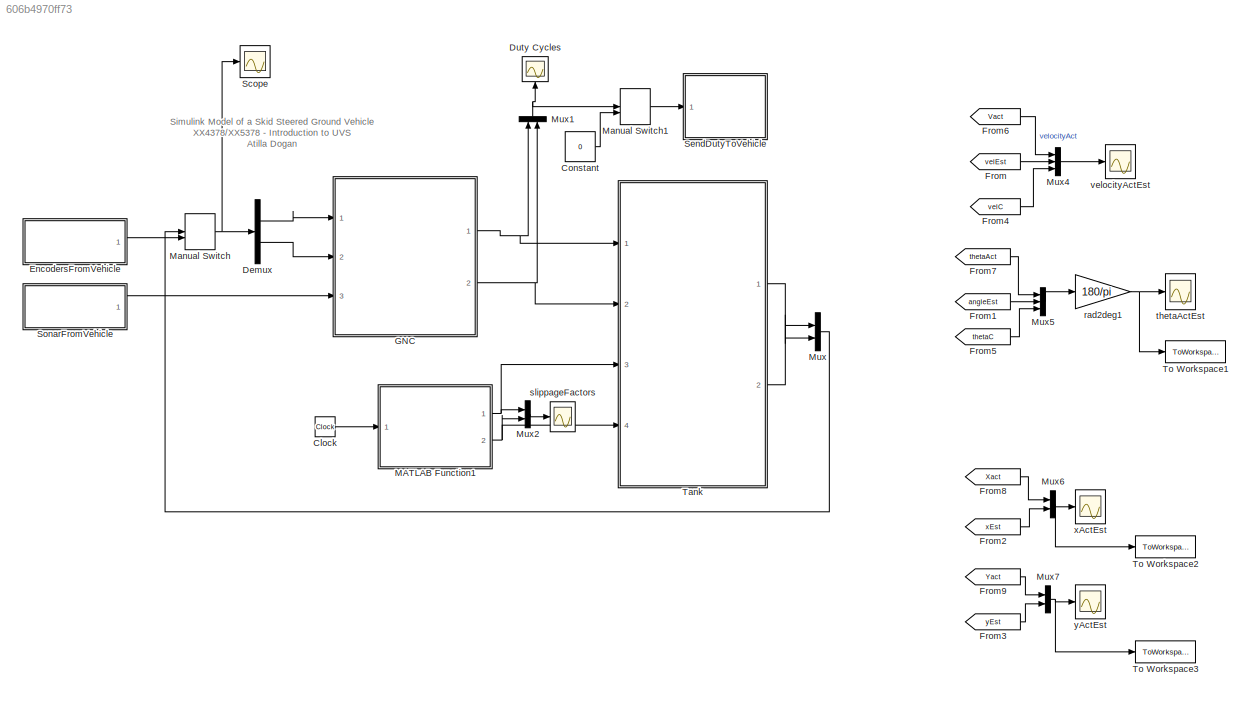
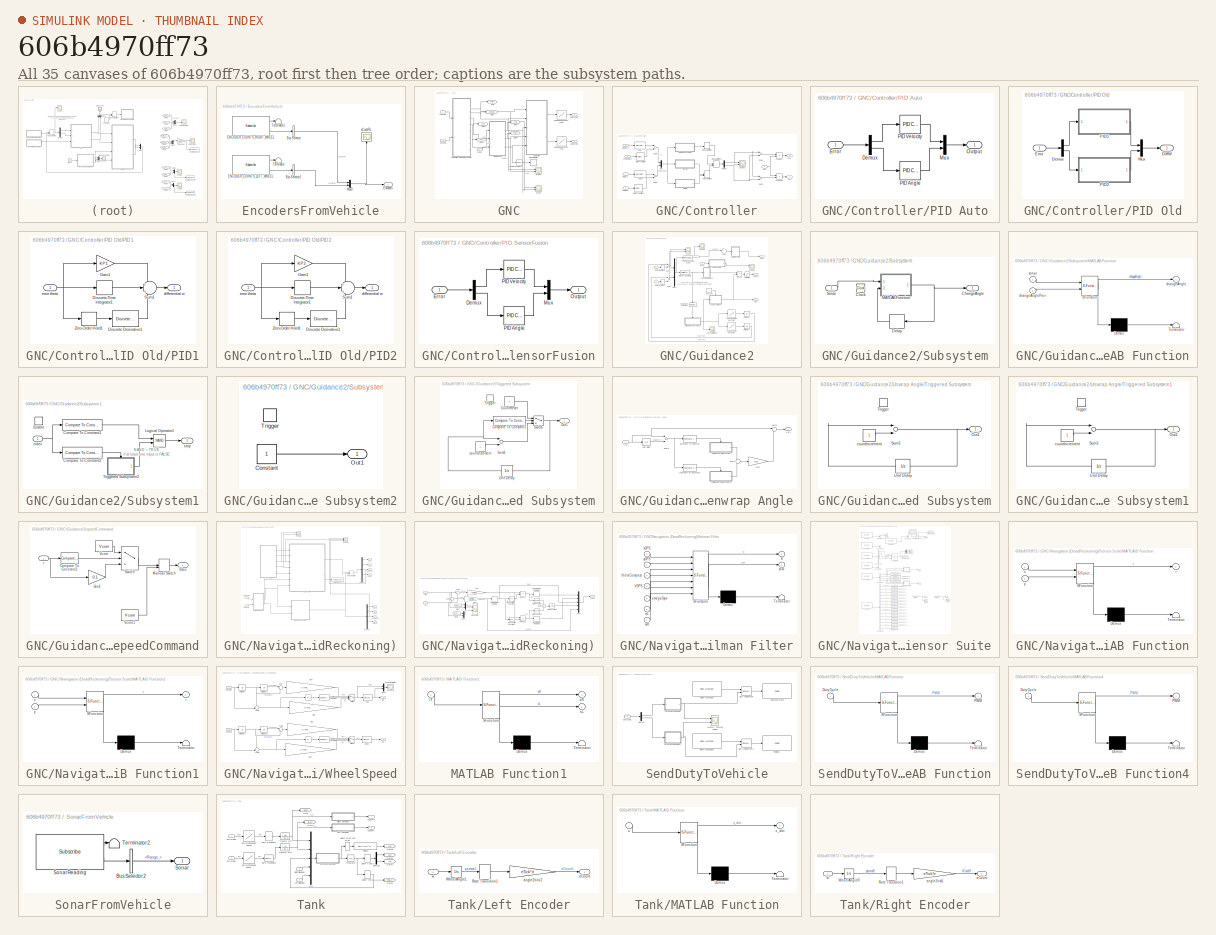
[diagram: thumbnail index - all 35 canvases of the model, root first then tree order]
MODEL slx_606b4970ff73
KIND model
CONFIG AbsTol = auto
CONFIG EnableMultiTasking = on
CONFIG FixedStep = 0.1
CONFIG InitFcn = parameterVehicle\nparameterGNC\n
CONFIG MaxStep = auto
CONFIG MinStep = auto
CONFIG PreLoadFcn = RTWConfigurationCB('preloadfcn', bdroot);
CONFIG RelTol = 1e-3
CONFIG SampleTimeConstraint = Unconstrained
CONFIG Solver = ode45
CONFIG SolverName = ode45
CONFIG StartFcn = start
CONFIG StartTime = 0.0
CONFIG StopFcn = stop\n\nmyStopFcn2sim(xActEst,yActEst,X_array,Y_array,rp1,rp2)\n
CONFIG StopTime = 300
BLOCK [Clock] Clock
BLOCK [Constant] Constant
  Value = 0
BLOCK [Demux] Demux
  DisplayOption = bar
  Outputs = 2
  Ports = [1, 2]
BLOCK [Scope] Duty Cycles
  Floating = off
  NumInputPorts = 1
  Ports = [1]
  ScopeSpecificationString = Simulink.scopes.TimeScopeBlockCfg('CurrentConfiguration', extmgr.ConfigurationSet(extmgr.Configuration('Core','General UI',true),extmgr.Configuration('Core','Source UI',true),extmgr.Configuration('Sources','WiredSimulink',true,'DataLoggingVariableName','ScopeData2','DataLoggingSaveFormat','StructureWithTime','DataLoggingDecimation','1','DataLoggingDecimateData',true),extmgr.Configuration('Visuals'...<+1781ch>
BLOCK [SubSystem] EncodersFromVehicle
  Ports = [0, 1]
  RequestExecContextInheritance = off
BLOCK [BusSelector] EncodersFromVehicle/Bus Selector
  OutputAsBus = off
  OutputSignals = Data
  Ports = [1, 1]
BLOCK [BusSelector] EncodersFromVehicle/Bus Selector1
  OutputAsBus = off
  OutputSignals = Data
  Ports = [1, 1]
BLOCK [Reference] EncodersFromVehicle/ENCODER_COUNTS_LEFT_WHEEL  REF=robotlib/Subscribe
  Ports = [0, 2]
  SourceBlock = robotlib/Subscribe
  SourceLibraryInfo = This block requires Robotics System Toolbox
  SourceProductBaseCode = RO
  SourceProductName = Robotics System Toolbox
  SourceType = ROS Subscribe
BLOCK [Reference] EncodersFromVehicle/ENCODER_COUNTS_RIGHT_WHEEL  REF=robotlib/Subscribe
  Ports = [0, 2]
  SourceBlock = robotlib/Subscribe
  SourceLibraryInfo = This block requires Robotics System Toolbox
  SourceProductBaseCode = RO
  SourceProductName = Robotics System Toolbox
  SourceType = ROS Subscribe
BLOCK [Outport] EncodersFromVehicle/Encoders
  IconDisplay = Port number
BLOCK [Mux] EncodersFromVehicle/Mux3
  DisplayOption = bar
  Inputs = 2
  Ports = [2, 1]
BLOCK [Terminator] EncodersFromVehicle/Terminator
BLOCK [Terminator] EncodersFromVehicle/Terminator1
BLOCK [Scope] EncodersFromVehicle/eCountRL
  Floating = off
  NumInputPorts = 1
  Ports = [1]
  ScopeSpecificationString = Simulink.scopes.TimeScopeBlockCfg('CurrentConfiguration', extmgr.ConfigurationSet(extmgr.Configuration('Core','General UI',true),extmgr.Configuration('Core','Source UI',true),extmgr.Configuration('Sources','WiredSimulink',true,'DataLogging',true,'DataLoggingVariableName','ScopeData1','DataLoggingSaveFormat','StructureWithTime','DataLoggingDecimation','1','DataLoggingDecimateData',true),extmgr.Conf...<+1777ch>
BLOCK [From] From
  GotoTag = velEst
  TagVisibility = global
BLOCK [From] From1
  GotoTag = angleEst
  TagVisibility = global
BLOCK [From] From2
  GotoTag = xEst
  TagVisibility = global
BLOCK [From] From3
  GotoTag = yEst
  TagVisibility = global
BLOCK [From] From4
  GotoTag = velC
  TagVisibility = global
BLOCK [From] From5
  GotoTag = thetaC
  TagVisibility = global
BLOCK [From] From6
  GotoTag = Vact
  TagVisibility = global
BLOCK [From] From7
  GotoTag = thetaAct
  TagVisibility = global
BLOCK [From] From8
  GotoTag = Xact
  TagVisibility = global
BLOCK [From] From9
  GotoTag = Yact
  TagVisibility = global
BLOCK [SubSystem] GNC
  Ports = [3, 2]
  RequestExecContextInheritance = off
BLOCK [Reference] GNC/Compare To Zero  REF=simulink/Logic and Bit
Operations/Compare
To Zero
  Ports = [1, 1]
  SourceBlock = simulink/Logic and Bit\nOperations/Compare\nTo Zero
  SourceProductBaseCode = SL
  SourceProductName = Simulink
  SourceType = Compare To Zero
BLOCK [SubSystem] GNC/Controller
  Ports = [5, 2]
  RequestExecContextInheritance = off
BLOCK [Demux] GNC/Controller/Demux
  DisplayOption = bar
  Outputs = 2
  Ports = [1, 2]
BLOCK [ManualSwitch] GNC/Controller/Manual Switch
BLOCK [ManualSwitch] GNC/Controller/Manual Switch1
  CurrentSetting = 0
BLOCK [ManualSwitch] GNC/Controller/Manual Switch2
  CurrentSetting = 0
BLOCK [Mux] GNC/Controller/Mux
  DisplayOption = bar
  Inputs = 2
  Ports = [2, 1]
BLOCK [SubSystem] GNC/Controller/PID Auto
  Ports = [1, 1]
  RequestExecContextInheritance = off
BLOCK [Demux] GNC/Controller/PID Auto/Demux
  DisplayOption = bar
  Outputs = 2
  Ports = [1, 2]
BLOCK [Inport] GNC/Controller/PID Auto/Error
  IconDisplay = Port number
BLOCK [Mux] GNC/Controller/PID Auto/Mux
  DisplayOption = bar
  Inputs = 2
  Ports = [2, 1]
BLOCK [Outport] GNC/Controller/PID Auto/Output 
  IconDisplay = Port number
BLOCK [Reference] GNC/Controller/PID Auto/PID Angle   REF=simulink/Continuous/PID Controller
  Ports = [1, 1]
  SourceBlock = simulink/Continuous/PID Controller
  SourceProductBaseCode = SL
  SourceProductName = Simulink
  SourceType = PID 1dof
BLOCK [Reference] GNC/Controller/PID Auto/PID Velocity  REF=simulink/Continuous/PID Controller
  Ports = [1, 1]
  SourceBlock = simulink/Continuous/PID Controller
  SourceProductBaseCode = SL
  SourceProductName = Simulink
  SourceType = PID 1dof
BLOCK [SubSystem] GNC/Controller/PID Old
  Ports = [1, 1]
  RequestExecContextInheritance = off
BLOCK [Demux] GNC/Controller/PID Old/Demux
  DisplayOption = bar
  Outputs = 2
  Ports = [1, 2]
BLOCK [Outport] GNC/Controller/PID Old/DiffW 
  IconDisplay = Port number
BLOCK [Inport] GNC/Controller/PID Old/Error
  IconDisplay = Port number
BLOCK [Mux] GNC/Controller/PID Old/Mux
  DisplayOption = bar
  Inputs = 2
  Ports = [2, 1]
BLOCK [SubSystem] GNC/Controller/PID Old/PID1
  Ports = [1, 1]
  RequestExecContextInheritance = off
BLOCK [Reference] GNC/Controller/PID Old/PID1/Discrete Derivative1  REF=simulink/Discrete/Discrete Derivative
  Ports = [1, 1]
  SourceBlock = simulink/Discrete/Discrete Derivative
  SourceProductBaseCode = SL
  SourceProductName = Simulink
  SourceType = Discrete Derivative
BLOCK [DiscreteIntegrator] GNC/Controller/PID Old/PID1/Discrete-Time Integrator1
  ICPrevOutput = DiscIntNeverNeededParam
  ICPrevScaledInput = DiscIntNeverNeededParam
  Ports = [1, 1]
  SampleTime = Tsample
  gainval = KI1
BLOCK [Gain] GNC/Controller/PID Old/PID1/Gain1
  Gain = KP1
  OutDataTypeStr = Inherit: Inherit via internal rule
  ParamDataTypeStr = Inherit: Inherit via internal rule
  SampleTime = Tsample
  SaturateOnIntegerOverflow = off
BLOCK [Sum] GNC/Controller/PID Old/PID1/Sum1
  IconShape = round
  InputSameDT = off
  Inputs = +|+|+
  OutDataTypeStr = Inherit: Inherit via internal rule
  Ports = [3, 1]
  SaturateOnIntegerOverflow = off
BLOCK [ZeroOrderHold] GNC/Controller/PID Old/PID1/Zero-Order Hold1
  SampleTime = Tsample
BLOCK [Outport] GNC/Controller/PID Old/PID1/differential w
  IconDisplay = Port number
BLOCK [Inport] GNC/Controller/PID Old/PID1/error theta
  IconDisplay = Port number
BLOCK [SubSystem] GNC/Controller/PID Old/PID2
  Ports = [1, 1]
  RequestExecContextInheritance = off
BLOCK [Reference] GNC/Controller/PID Old/PID2/Discrete Derivative1  REF=simulink/Discrete/Discrete Derivative
  Ports = [1, 1]
  SourceBlock = simulink/Discrete/Discrete Derivative
  SourceProductBaseCode = SL
  SourceProductName = Simulink
  SourceType = Discrete Derivative
BLOCK [DiscreteIntegrator] GNC/Controller/PID Old/PID2/Discrete-Time Integrator1
  ICPrevOutput = DiscIntNeverNeededParam
  ICPrevScaledInput = DiscIntNeverNeededParam
  Ports = [1, 1]
  SampleTime = Tsample
  gainval = KI2
BLOCK [Gain] GNC/Controller/PID Old/PID2/Gain1
  Gain = KP2
  OutDataTypeStr = Inherit: Inherit via internal rule
  ParamDataTypeStr = Inherit: Inherit via internal rule
  SampleTime = Tsample
  SaturateOnIntegerOverflow = off
BLOCK [Sum] GNC/Controller/PID Old/PID2/Sum1
  IconShape = round
  InputSameDT = off
  Inputs = +|+|+
  OutDataTypeStr = Inherit: Inherit via internal rule
  Ports = [3, 1]
  SaturateOnIntegerOverflow = off
BLOCK [ZeroOrderHold] GNC/Controller/PID Old/PID2/Zero-Order Hold1
  SampleTime = Tsample
BLOCK [Outport] GNC/Controller/PID Old/PID2/differential w
  IconDisplay = Port number
BLOCK [Inport] GNC/Controller/PID Old/PID2/error theta
  IconDisplay = Port number
BLOCK [SubSystem] GNC/Controller/PID SensorFusion
  Ports = [1, 1]
  RequestExecContextInheritance = off
BLOCK [Demux] GNC/Controller/PID SensorFusion/Demux
  DisplayOption = bar
  Outputs = 2
  Ports = [1, 2]
BLOCK [Inport] GNC/Controller/PID SensorFusion/Error
  IconDisplay = Port number
BLOCK [Mux] GNC/Controller/PID SensorFusion/Mux
  DisplayOption = bar
  Inputs = 2
  Ports = [2, 1]
BLOCK [Outport] GNC/Controller/PID SensorFusion/Output 
  IconDisplay = Port number
BLOCK [Reference] GNC/Controller/PID SensorFusion/PID Angle   REF=simulink/Continuous/PID Controller
  Ports = [1, 1]
  SourceBlock = simulink/Continuous/PID Controller
  SourceProductBaseCode = SL
  SourceProductName = Simulink
  SourceType = PID 1dof
BLOCK [Reference] GNC/Controller/PID SensorFusion/PID Velocity  REF=simulink/Continuous/PID Controller
  Ports = [1, 1]
  SourceBlock = simulink/Continuous/PID Controller
  SourceProductBaseCode = SL
  SourceProductName = Simulink
  SourceType = PID 1dof
BLOCK [Product] GNC/Controller/Product
  InputSameDT = off
  OutDataTypeStr = Inherit: Inherit via internal rule
  Ports = [2, 1]
  SaturateOnIntegerOverflow = off
BLOCK [Product] GNC/Controller/Product1
  InputSameDT = off
  OutDataTypeStr = Inherit: Inherit via internal rule
  Ports = [2, 1]
  SaturateOnIntegerOverflow = off
BLOCK [RateTransition] GNC/Controller/Rate Transition
  Deterministic = off
BLOCK [RateTransition] GNC/Controller/Rate Transition1
  Deterministic = off
BLOCK [Scope] GNC/Controller/Scope1
  Floating = off
  NumInputPorts = 2
  Ports = [2]
  ScopeSpecificationString = Simulink.scopes.TimeScopeBlockCfg('CurrentConfiguration', extmgr.ConfigurationSet(extmgr.Configuration('Core','General UI',true),extmgr.Configuration('Core','Source UI',true),extmgr.Configuration('Sources','WiredSimulink',true,'DataLoggingVariableName','ScopeData7'),extmgr.Configuration('Visuals','Time Domain',true,'SerializedDisplays',{struct('MinYLimReal','-62.15398','MaxYLimReal','120.20901','Y...<+1438ch>
BLOCK [Sum] GNC/Controller/Sum2
  InputSameDT = off
  Inputs = |+|-|
  OutDataTypeStr = Inherit: Inherit via internal rule
  Ports = [2, 1]
  SampleTime = Tsample
  SaturateOnIntegerOverflow = off
BLOCK [Sum] GNC/Controller/Sum3
  InputSameDT = off
  Inputs = |+|-|
  OutDataTypeStr = Inherit: Inherit via internal rule
  Ports = [2, 1]
  SampleTime = Tsample
  SaturateOnIntegerOverflow = off
BLOCK [Sum] GNC/Controller/Sum4
  InputSameDT = off
  Inputs = +|-
  OutDataTypeStr = Inherit: Inherit via internal rule
  Ports = [2, 1]
  SaturateOnIntegerOverflow = off
BLOCK [Sum] GNC/Controller/Sum5
  InputSameDT = off
  Inputs = +|+
  OutDataTypeStr = Inherit: Inherit via internal rule
  Ports = [2, 1]
  SaturateOnIntegerOverflow = off
BLOCK [Inport] GNC/Controller/VeclocityEst
  IconDisplay = Port number
BLOCK [Inport] GNC/Controller/Velocity_C
  IconDisplay = Port number
  Port = 3
BLOCK [Outport] GNC/Controller/WL
  IconDisplay = Port number
  Port = 2
BLOCK [Outport] GNC/Controller/WR
  IconDisplay = Port number
BLOCK [DiscreteTransferFcn] GNC/Controller/ZOH
  Denominator = [1  -exp(-Tsample/Tau1)]
  InputPortMap = u0
  Numerator = [1-exp(-Tsample/Tau1)]
  Ports = [1, 1]
  SampleTime = Tsample
BLOCK [DiscreteTransferFcn] GNC/Controller/ZOH1
  Denominator = [1  -exp(-Tsample/Tau2)]
  InputPortMap = u0
  Numerator = [1-exp(-Tsample/Tau2)]
  Ports = [1, 1]
  SampleTime = Tsample
BLOCK [Inport] GNC/Controller/stop
  IconDisplay = Port number
  Port = 5
BLOCK [Inport] GNC/Controller/thetaEst
  IconDisplay = Port number
  Port = 2
BLOCK [Inport] GNC/Controller/theta_C
  IconDisplay = Port number
  Port = 4
BLOCK [Outport] GNC/DutyCycleL
  IconDisplay = Port number
  Port = 2
BLOCK [Outport] GNC/DutyCycleR
  IconDisplay = Port number
BLOCK [Goto] GNC/Goto
  GotoTag = velEst
  TagVisibility = global
BLOCK [Goto] GNC/Goto1
  GotoTag = angleEst
  TagVisibility = global
BLOCK [Goto] GNC/Goto2
  GotoTag = xEst
  TagVisibility = global
BLOCK [Goto] GNC/Goto3
  GotoTag = yEst
  TagVisibility = global
BLOCK [Goto] GNC/Goto4
  GotoTag = velC
  TagVisibility = global
BLOCK [Goto] GNC/Goto5
  GotoTag = thetaC
  TagVisibility = global
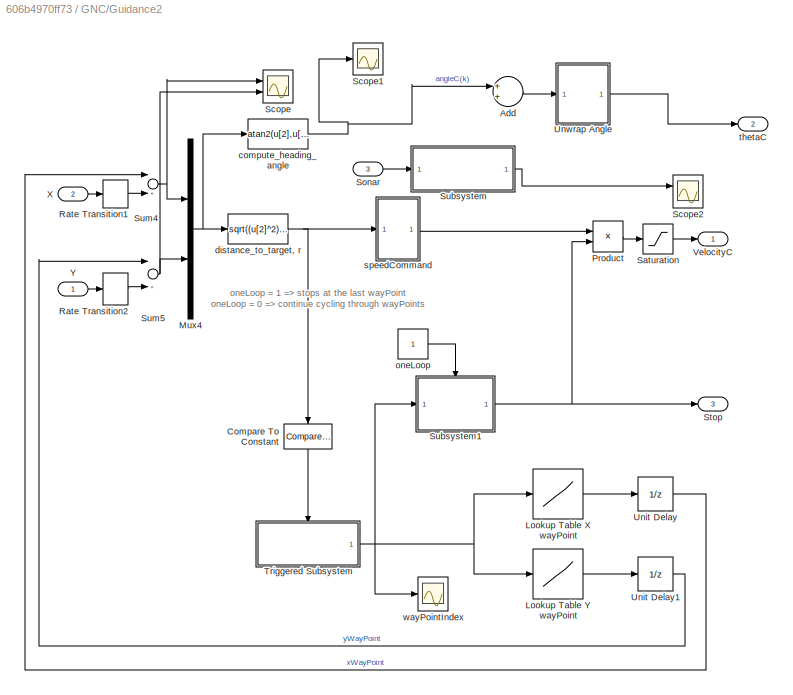
BLOCK [SubSystem] GNC/Guidance2
  Ports = [3, 3]
  RequestExecContextInheritance = off
BLOCK [Sum] GNC/Guidance2/Add
  InputSameDT = off
  OutDataTypeStr = Inherit: Inherit via internal rule
  Ports = [2, 1]
  SaturateOnIntegerOverflow = off
BLOCK [Reference] GNC/Guidance2/Compare To Constant  REF=simulink/Logic and Bit
Operations/Compare
To Constant
  Ports = [1, 1]
  SourceBlock = simulink/Logic and Bit\nOperations/Compare\nTo Constant
  SourceProductBaseCode = SL
  SourceProductName = Simulink
  SourceType = Compare To Constant
BLOCK [Lookup] GNC/Guidance2/Lookup Table X wayPoint
  InputValues = [1:length(X_array)]
  LookUpMeth = Interpolation-Use End Values
  OutDataTypeStr = double
  SaturateOnIntegerOverflow = off
  Table = X_array
BLOCK [Lookup] GNC/Guidance2/Lookup Table Y wayPoint
  InputValues = [1:length(Y_array)]
  LookUpMeth = Interpolation-Use End Values
  OutDataTypeStr = double
  SaturateOnIntegerOverflow = off
  Table = Y_array
BLOCK [Mux] GNC/Guidance2/Mux4
  DisplayOption = bar
  Inputs = 2
  Ports = [2, 1]
BLOCK [Product] GNC/Guidance2/Product
  InputSameDT = off
  OutDataTypeStr = Inherit: Inherit via internal rule
  Ports = [2, 1]
  SaturateOnIntegerOverflow = off
BLOCK [RateTransition] GNC/Guidance2/Rate Transition1
BLOCK [RateTransition] GNC/Guidance2/Rate Transition2
BLOCK [Saturate] GNC/Guidance2/Saturation
  InputPortMap = u0
  LowerLimit = 0
  Ports = [1, 1]
  SampleTime = Tsample
  UpperLimit = Vcom
BLOCK [Scope] GNC/Guidance2/Scope
  Floating = off
  NumInputPorts = 2
  Ports = [2]
  ScopeSpecificationString = Simulink.scopes.TimeScopeBlockCfg('CurrentConfiguration', extmgr.ConfigurationSet(extmgr.Configuration('Core','General UI',true),extmgr.Configuration('Core','Source UI',true),extmgr.Configuration('Sources','WiredSimulink',true,'DataLoggingVariableName','ScopeData1'),extmgr.Configuration('Visuals','Time Domain',true,'SerializedDisplays',{struct('MinYLimReal','-7.2718','MaxYLimReal','12.08814','YLab...<+1424ch>
BLOCK [Scope] GNC/Guidance2/Scope1
  Floating = off
  NumInputPorts = 1
  Ports = [1]
  ScopeSpecificationString = Simulink.scopes.TimeScopeBlockCfg('CurrentConfiguration', extmgr.ConfigurationSet(extmgr.Configuration('Core','General UI',true),extmgr.Configuration('Core','Source UI',true),extmgr.Configuration('Sources','WiredSimulink',true,'DataLoggingVariableName','ScopeData2'),extmgr.Configuration('Visuals','Time Domain',true,'SerializedDisplays',{struct('MinYLimReal','-3.91621','MaxYLimReal','3.84856','YLab...<+1422ch>
BLOCK [Scope] GNC/Guidance2/Scope2
  Floating = off
  NumInputPorts = 2
  Ports = [2]
  ScopeSpecificationString = Simulink.scopes.TimeScopeBlockCfg('CurrentConfiguration', extmgr.ConfigurationSet(extmgr.Configuration('Core','General UI',true),extmgr.Configuration('Core','Source UI',true),extmgr.Configuration('Sources','WiredSimulink',true,'DataLoggingVariableName','ScopeData3'),extmgr.Configuration('Visuals','Time Domain',true,'InputProcessing','FrameProcessing','SerializedDisplays',{struct('MinYLimReal','-1....<+1799ch>
BLOCK [Inport] GNC/Guidance2/Sonar 
  IconDisplay = Port number
  Port = 3
BLOCK [Outport] GNC/Guidance2/Stop
  IconDisplay = Port number
  Port = 3
BLOCK [SubSystem] GNC/Guidance2/Subsystem
  Ports = [1, 1]
  RequestExecContextInheritance = off
BLOCK [Outport] GNC/Guidance2/Subsystem/ChangeAngle 
  IconDisplay = Port number
  OutDataTypeStr = double
BLOCK [Clock] GNC/Guidance2/Subsystem/Clock
BLOCK [Delay] GNC/Guidance2/Subsystem/Delay
  DelayLength = 1
  InputPortMap = u0
  Ports = [1, 1]
BLOCK [SubSystem] GNC/Guidance2/Subsystem/MATLAB Function
  ErrorFcn = Stateflow.Translate.translate
  PermitHierarchicalResolution = ExplicitOnly
  Ports = [2, 1]
  RequestExecContextInheritance = off
  SFBlockType = MATLAB Function
  TreatAsAtomicUnit = on
BLOCK [Demux] GNC/Guidance2/Subsystem/MATLAB Function/ Demux 
  Outputs = 1
  Ports = [1, 1]
BLOCK [S-Function] GNC/Guidance2/Subsystem/MATLAB Function/ SFunction 
  EnableBusSupport = on
  FunctionName = sf_sfun
  PortCounts = [2 2]
  Ports = [2, 2]
  SFcnIsStateOwnerBlock = off
  SFunctionDeploymentMode = off
  Tag = Stateflow S-Function trackVehicleNewVer6b_Encoders_DR_GNC 2
BLOCK [Terminator] GNC/Guidance2/Subsystem/MATLAB Function/ Terminator 
BLOCK [Outport] GNC/Guidance2/Subsystem/MATLAB Function/changeAngle
  IconDisplay = Port number
BLOCK [Inport] GNC/Guidance2/Subsystem/MATLAB Function/changeAnglePrev
  IconDisplay = Port number
  Port = 2
BLOCK [Inport] GNC/Guidance2/Subsystem/MATLAB Function/sonar
  IconDisplay = Port number
BLOCK [Inport] GNC/Guidance2/Subsystem/Sonar 
  IconDisplay = Port number
BLOCK [SubSystem] GNC/Guidance2/Subsystem1
  Ports = [1, 1, 1]
  RequestExecContextInheritance = off
BLOCK [Reference] GNC/Guidance2/Subsystem1/Compare To Constant1  REF=simulink/Logic and Bit
Operations/Compare
To Constant
  Ports = [1, 1]
  SourceBlock = simulink/Logic and Bit\nOperations/Compare\nTo Constant
  SourceProductBaseCode = SL
  SourceProductName = Simulink
  SourceType = Compare To Constant
BLOCK [Reference] GNC/Guidance2/Subsystem1/Compare To Constant2  REF=simulink/Logic and Bit
Operations/Compare
To Constant
  Ports = [1, 1]
  SourceBlock = simulink/Logic and Bit\nOperations/Compare\nTo Constant
  SourceProductBaseCode = SL
  SourceProductName = Simulink
  SourceType = Compare To Constant
BLOCK [EnablePort] GNC/Guidance2/Subsystem1/Enable
  Ports = []
BLOCK [Logic] GNC/Guidance2/Subsystem1/Logical Operator1
  AllPortsSameDT = off
  IconShape = distinctive
  Operator = NAND
  OutDataTypeStr = boolean
  Ports = [2, 1]
BLOCK [SubSystem] GNC/Guidance2/Subsystem1/Triggered Subsystem2
  Ports = [0, 1, 0, 1]
  RequestExecContextInheritance = off
  TreatAsAtomicUnit = on
BLOCK [Constant] GNC/Guidance2/Subsystem1/Triggered Subsystem2/Constant
  OutDataTypeStr = uint32
  SampleTime = -1
BLOCK [Outport] GNC/Guidance2/Subsystem1/Triggered Subsystem2/Out1
  IconDisplay = Port number
  InitialOutput = 0
  OutDataTypeStr = uint32
BLOCK [TriggerPort] GNC/Guidance2/Subsystem1/Triggered Subsystem2/Trigger
  Ports = []
  StatesWhenEnabling = held
  VariantControl = (inherit)
BLOCK [Inport] GNC/Guidance2/Subsystem1/index
  IconDisplay = Port number
BLOCK [Outport] GNC/Guidance2/Subsystem1/stop
  IconDisplay = Port number
  InitialOutput = [1]
  OutputWhenDisabled = reset
BLOCK [Sum] GNC/Guidance2/Sum4
  InputSameDT = off
  Inputs = |+|-|
  OutDataTypeStr = Inherit: Inherit via internal rule
  Ports = [2, 1]
  SaturateOnIntegerOverflow = off
BLOCK [Sum] GNC/Guidance2/Sum5
  InputSameDT = off
  Inputs = |+|-|
  OutDataTypeStr = Inherit: Inherit via internal rule
  Ports = [2, 1]
  SaturateOnIntegerOverflow = off
BLOCK [SubSystem] GNC/Guidance2/Triggered Subsystem
  Ports = [0, 1, 0, 1]
  RequestExecContextInheritance = off
  TreatAsAtomicUnit = on
BLOCK [Reference] GNC/Guidance2/Triggered Subsystem/Compare To Constant1  REF=simulink/Logic and Bit
Operations/Compare
To Constant
  Ports = [1, 1]
  SourceBlock = simulink/Logic and Bit\nOperations/Compare\nTo Constant
  SourceProductBaseCode = SL
  SourceProductName = Simulink
  SourceType = Compare To Constant
BLOCK [Constant] GNC/Guidance2/Triggered Subsystem/CountReset
  OutDataTypeStr = uint32
  SampleTime = -1
BLOCK [Outport] GNC/Guidance2/Triggered Subsystem/Out1
  IconDisplay = Port number
  InitialOutput = 1
  OutDataTypeStr = uint32
BLOCK [Sum] GNC/Guidance2/Triggered Subsystem/Sum3
  InputSameDT = off
  OutDataTypeStr = uint32
  Ports = [2, 1]
  SaturateOnIntegerOverflow = off
BLOCK [Switch] GNC/Guidance2/Triggered Subsystem/Switch
  InputSameDT = off
  SaturateOnIntegerOverflow = off
  Threshold = 0.5
BLOCK [TriggerPort] GNC/Guidance2/Triggered Subsystem/Trigger
  Ports = []
  StatesWhenEnabling = held
  VariantControl = (inherit)
BLOCK [UnitDelay] GNC/Guidance2/Triggered Subsystem/Unit Delay
  InitialCondition = 1
  SampleTime = -1
BLOCK [Constant] GNC/Guidance2/Triggered Subsystem/countIncrement
  OutDataTypeStr = uint32
  SampleTime = -1
BLOCK [UnitDelay] GNC/Guidance2/Unit Delay
  SampleTime = Tsample
BLOCK [UnitDelay] GNC/Guidance2/Unit Delay1
  SampleTime = Tsample
BLOCK [SubSystem] GNC/Guidance2/Unwrap Angle
  Ports = [1, 1]
  RequestExecContextInheritance = off
BLOCK [Reference] GNC/Guidance2/Unwrap Angle/Compare To Constant  REF=simulink/Logic and Bit
Operations/Compare
To Constant
  Ports = [1, 1]
  SourceBlock = simulink/Logic and Bit\nOperations/Compare\nTo Constant
  SourceProductBaseCode = SL
  SourceProductName = Simulink
  SourceType = Compare To Constant
BLOCK [Reference] GNC/Guidance2/Unwrap Angle/Compare To Constant1  REF=simulink/Logic and Bit
Operations/Compare
To Constant
  Ports = [1, 1]
  SourceBlock = simulink/Logic and Bit\nOperations/Compare\nTo Constant
  SourceProductBaseCode = SL
  SourceProductName = Simulink
  SourceType = Compare To Constant
BLOCK [Gain] GNC/Guidance2/Unwrap Angle/Gin4
  Gain = 2*pi
  OutDataTypeStr = double
  ParamDataTypeStr = Inherit: Inherit via internal rule
  SampleTime = Tsample
  SaturateOnIntegerOverflow = off
BLOCK [Inport] GNC/Guidance2/Unwrap Angle/In1
  IconDisplay = Port number
BLOCK [Outport] GNC/Guidance2/Unwrap Angle/Out1
  IconDisplay = Port number
BLOCK [Sum] GNC/Guidance2/Unwrap Angle/Sum1
  IconShape = round
  InputSameDT = off
  Inputs = +|+
  OutDataTypeStr = Inherit: Inherit via internal rule
  Ports = [2, 1]
  SaturateOnIntegerOverflow = off
BLOCK [Sum] GNC/Guidance2/Unwrap Angle/Sum2
  IconShape = round
  InputSameDT = off
  Inputs = |+-
  OutDataTypeStr = Inherit: Inherit via internal rule
  Ports = [2, 1]
  SaturateOnIntegerOverflow = off
BLOCK [Sum] GNC/Guidance2/Unwrap Angle/Sum5
  InputSameDT = off
  Inputs = |+|-|
  OutDataTypeStr = Inherit: Inherit via internal rule
  Ports = [2, 1]
  SaturateOnIntegerOverflow = off
BLOCK [SubSystem] GNC/Guidance2/Unwrap Angle/Triggered Subsystem
  Ports = [0, 1, 0, 1]
  RequestExecContextInheritance = off
  TreatAsAtomicUnit = on
BLOCK [Outport] GNC/Guidance2/Unwrap Angle/Triggered Subsystem/Out1
  IconDisplay = Port number
  InitialOutput = 0
  OutDataTypeStr = int32
BLOCK [Sum] GNC/Guidance2/Unwrap Angle/Triggered Subsystem/Sum3
  InputSameDT = off
  OutDataTypeStr = int32
  Ports = [2, 1]
  SaturateOnIntegerOverflow = off
BLOCK [TriggerPort] GNC/Guidance2/Unwrap Angle/Triggered Subsystem/Trigger
  Ports = []
  StatesWhenEnabling = held
  VariantControl = (inherit)
BLOCK [UnitDelay] GNC/Guidance2/Unwrap Angle/Triggered Subsystem/Unit Delay
  SampleTime = -1
BLOCK [Constant] GNC/Guidance2/Unwrap Angle/Triggered Subsystem/countIncrement
  OutDataTypeStr = int32
  SampleTime = -1
BLOCK [SubSystem] GNC/Guidance2/Unwrap Angle/Triggered Subsystem1
  Ports = [0, 1, 0, 1]
  RequestExecContextInheritance = off
  TreatAsAtomicUnit = on
BLOCK [Outport] GNC/Guidance2/Unwrap Angle/Triggered Subsystem1/Out1
  IconDisplay = Port number
  InitialOutput = 0
  OutDataTypeStr = int32
BLOCK [Sum] GNC/Guidance2/Unwrap Angle/Triggered Subsystem1/Sum3
  InputSameDT = off
  Inputs = +-
  OutDataTypeStr = int32
  Ports = [2, 1]
  SaturateOnIntegerOverflow = off
BLOCK [TriggerPort] GNC/Guidance2/Unwrap Angle/Triggered Subsystem1/Trigger
  Ports = []
  StatesWhenEnabling = held
  VariantControl = (inherit)
BLOCK [UnitDelay] GNC/Guidance2/Unwrap Angle/Triggered Subsystem1/Unit Delay
  SampleTime = -1
BLOCK [Constant] GNC/Guidance2/Unwrap Angle/Triggered Subsystem1/countIncrement
  OutDataTypeStr = int32
  SampleTime = -1
BLOCK [UnitDelay] GNC/Guidance2/Unwrap Angle/Unit Delay
  SampleTime = Tsample
BLOCK [Outport] GNC/Guidance2/VelocityC
  IconDisplay = Port number
BLOCK [Inport] GNC/Guidance2/X
  IconDisplay = Port number
  Port = 2
BLOCK [Inport] GNC/Guidance2/Y
  IconDisplay = Port number
BLOCK [Fcn] GNC/Guidance2/compute_heading_angle
  Expr = atan2(u[2],u[1])
  SampleTime = Tsample
BLOCK [Fcn] GNC/Guidance2/distance_to_target, r
  Expr = sqrt((u[2]^2)+(u[1]^2))
  SampleTime = Tsample
BLOCK [Constant] GNC/Guidance2/oneLoop
  OutDataTypeStr = uint32
  SampleTime = Tsample
BLOCK [SubSystem] GNC/Guidance2/speedCommand
  Ports = [1, 1]
  RequestExecContextInheritance = off
BLOCK [Reference] GNC/Guidance2/speedCommand/Compare To Constant2  REF=simulink/Logic and Bit
Operations/Compare
To Constant
  Ports = [1, 1]
  SourceBlock = simulink/Logic and Bit\nOperations/Compare\nTo Constant
  SourceProductBaseCode = SL
  SourceProductName = Simulink
  SourceType = Compare To Constant
BLOCK [Gain] GNC/Guidance2/speedCommand/Gin4
  Gain = 0.1
  OutDataTypeStr = Inherit: Inherit via internal rule
  ParamDataTypeStr = Inherit: Inherit via internal rule
  SampleTime = Tsample
  SaturateOnIntegerOverflow = off
BLOCK [ManualSwitch] GNC/Guidance2/speedCommand/Manual Switch
  CurrentSetting = 0
BLOCK [Switch] GNC/Guidance2/speedCommand/Switch
  Criteria = u2 > Threshold
  InputSameDT = off
  SaturateOnIntegerOverflow = off
BLOCK [Constant] GNC/Guidance2/speedCommand/Vcom
  SampleTime = Tsample
  Value = Vcom
BLOCK [Constant] GNC/Guidance2/speedCommand/Vcom1
  SampleTime = Tsample
  Value = Vcom
BLOCK [Outport] GNC/Guidance2/speedCommand/Vdes
  IconDisplay = Port number
BLOCK [Inport] GNC/Guidance2/speedCommand/r
  IconDisplay = Port number
BLOCK [Outport] GNC/Guidance2/thetaC
  IconDisplay = Port number
  Port = 2
BLOCK [Scope] GNC/Guidance2/wayPointIndex
  Floating = off
  NumInputPorts = 1
  Ports = [1]
  ScopeSpecificationString = Simulink.scopes.TimeScopeBlockCfg('CurrentConfiguration', extmgr.ConfigurationSet(extmgr.Configuration('Core','General UI',true),extmgr.Configuration('Core','Source UI',true),extmgr.Configuration('Sources','WiredSimulink',true,'DataLoggingVariableName','ScopeData1','DataLoggingSaveFormat','StructureWithTime','DataLoggingDecimation','1','DataLoggingDecimateData',true),extmgr.Configuration('Visuals'...<+1786ch>
BLOCK [SubSystem] GNC/Navigation (DeadReckoning)
  Ports = [2, 8]
  RequestExecContextInheritance = off
BLOCK [SubSystem] GNC/Navigation (DeadReckoning)/(DeadReckoning)
  Ports = [2, 1]
  RequestExecContextInheritance = off
BLOCK [DiscreteIntegrator] GNC/Navigation (DeadReckoning)/(DeadReckoning)/Discrete-Time Integrator
  ICPrevOutput = DiscIntNeverNeededParam
  ICPrevScaledInput = DiscIntNeverNeededParam
  Ports = [1, 1]
  SampleTime = TsampleEncoderDR
BLOCK [DiscreteIntegrator] GNC/Navigation (DeadReckoning)/(DeadReckoning)/Discrete-Time Integrator1
  ICPrevOutput = DiscIntNeverNeededParam
  ICPrevScaledInput = DiscIntNeverNeededParam
  Ports = [1, 1]
  SampleTime = TsampleEncoderDR
BLOCK [DiscreteIntegrator] GNC/Navigation (DeadReckoning)/(DeadReckoning)/Discrete-Time Integrator2
  ICPrevOutput = DiscIntNeverNeededParam
  ICPrevScaledInput = DiscIntNeverNeededParam
  Ports = [1, 1]
  SampleTime = TsampleEncoderDR
BLOCK [From] GNC/Navigation (DeadReckoning)/(DeadReckoning)/From
  GotoTag = wRact
  TagVisibility = global
BLOCK [From] GNC/Navigation (DeadReckoning)/(DeadReckoning)/From1
  GotoTag = wLact
  TagVisibility = global
BLOCK [Gain] GNC/Navigation (DeadReckoning)/(DeadReckoning)/Gin1
  Gain = rNominalDR/bDR
  OutDataTypeStr = double
  ParamDataTypeStr = Inherit: Inherit via internal rule
  SaturateOnIntegerOverflow = off
BLOCK [Gain] GNC/Navigation (DeadReckoning)/(DeadReckoning)/Gin4
  Gain = rNominalDR/2
  OutDataTypeStr = double
  ParamDataTypeStr = Inherit: Inherit via internal rule
  SaturateOnIntegerOverflow = off
BLOCK [Math] GNC/Navigation (DeadReckoning)/(DeadReckoning)/Math Function
  Operator = square
  Ports = [1, 1]
BLOCK [Math] GNC/Navigation (DeadReckoning)/(DeadReckoning)/Math Function1
  Operator = square
  Ports = [1, 1]
BLOCK [Math] GNC/Navigation (DeadReckoning)/(DeadReckoning)/Math Function2
  Operator = sqrt
  OutputSignalType = real
  Ports = [1, 1]
BLOCK [Mux] GNC/Navigation (DeadReckoning)/(DeadReckoning)/Mux3
  DisplayOption = bar
  Inputs = 2
  Ports = [2, 1]
BLOCK [Mux] GNC/Navigation (DeadReckoning)/(DeadReckoning)/Mux4
  DisplayOption = bar
  Inputs = 2
  Ports = [2, 1]
BLOCK [Mux] GNC/Navigation (DeadReckoning)/(DeadReckoning)/Mux5
  DisplayOption = bar
  Inputs = 5
  Ports = [5, 1]
BLOCK [Product] GNC/Navigation (DeadReckoning)/(DeadReckoning)/Product
  InputSameDT = off
  OutDataTypeStr = Inherit: Inherit via internal rule
  Ports = [2, 1]
  SaturateOnIntegerOverflow = off
BLOCK [Product] GNC/Navigation (DeadReckoning)/(DeadReckoning)/Product1
  InputSameDT = off
  OutDataTypeStr = Inherit: Inherit via internal rule
  Ports = [2, 1]
  SaturateOnIntegerOverflow = off
BLOCK [Sum] GNC/Navigation (DeadReckoning)/(DeadReckoning)/Sum1
  IconShape = round
  InputSameDT = off
  Inputs = |++
  OutDataTypeStr = Inherit: Inherit via internal rule
  Ports = [2, 1]
  SaturateOnIntegerOverflow = off
BLOCK [Sum] GNC/Navigation (DeadReckoning)/(DeadReckoning)/Sum2
  IconShape = round
  InputSameDT = off
  Inputs = -|+
  OutDataTypeStr = Inherit: Inherit via internal rule
  Ports = [2, 1]
  SaturateOnIntegerOverflow = off
BLOCK [Sum] GNC/Navigation (DeadReckoning)/(DeadReckoning)/Sum3
  IconShape = round
  InputSameDT = off
  Inputs = +|+
  OutDataTypeStr = Inherit: Inherit via internal rule
  Ports = [2, 1]
  SaturateOnIntegerOverflow = off
BLOCK [Trigonometry] GNC/Navigation (DeadReckoning)/(DeadReckoning)/Trigonometric Function
  Operator = cos
  OutputSignalType = real
  Ports = [1, 1]
BLOCK [Trigonometry] GNC/Navigation (DeadReckoning)/(DeadReckoning)/Trigonometric Function1
  OutputSignalType = real
  Ports = [1, 1]
BLOCK [Outport] GNC/Navigation (DeadReckoning)/(DeadReckoning)/snav
  IconDisplay = Port number
BLOCK [Inport] GNC/Navigation (DeadReckoning)/(DeadReckoning)/wL
  IconDisplay = Port number
  Port = 2
BLOCK [Inport] GNC/Navigation (DeadReckoning)/(DeadReckoning)/wR
  IconDisplay = Port number
BLOCK [Scope] GNC/Navigation (DeadReckoning)/(DeadReckoning)/wRLactEst
  Floating = off
  NumInputPorts = 2
  Ports = [2]
  ScopeSpecificationString = Simulink.scopes.TimeScopeBlockCfg('CurrentConfiguration', extmgr.ConfigurationSet(extmgr.Configuration('Core','General UI',true),extmgr.Configuration('Core','Source UI',true),extmgr.Configuration('Sources','WiredSimulink',true,'DataLoggingVariableName','ScopeData4','DataLoggingSaveFormat','StructureWithTime','DataLoggingDecimation','1','DataLoggingDecimateData',true),extmgr.Configuration('Visuals'...<+2352ch>
BLOCK [Demux] GNC/Navigation (DeadReckoning)/Demux
  DisplayOption = bar
  Outputs = 5
  Ports = [1, 5]
BLOCK [Demux] GNC/Navigation (DeadReckoning)/Demux1
  DisplayOption = bar
  Outputs = 5
  Ports = [1, 5]
BLOCK [SubSystem] GNC/Navigation (DeadReckoning)/Kalman Filter
  ErrorFcn = Stateflow.Translate.translate
  PermitHierarchicalResolution = ExplicitOnly
  Ports = [7, 2]
  RequestExecContextInheritance = off
  SFBlockType = MATLAB Function
  SystemSampleTime = Tsample
  TreatAsAtomicUnit = on
BLOCK [Demux] GNC/Navigation (DeadReckoning)/Kalman Filter/ Demux 
  Outputs = 1
  Ports = [1, 1]
BLOCK [S-Function] GNC/Navigation (DeadReckoning)/Kalman Filter/ SFunction 
  EnableBusSupport = on
  FunctionName = sf_sfun
  Parameters = Tsample,bDR,rNominalDR
  PortCounts = [7 3]
  Ports = [7, 3]
  SFcnIsStateOwnerBlock = off
  SFunctionDeploymentMode = off
  Tag = Stateflow S-Function trackVehicleNewVer6b_Encoders_DR_GNC 4
BLOCK [Terminator] GNC/Navigation (DeadReckoning)/Kalman Filter/ Terminator 
BLOCK [Inport] GNC/Navigation (DeadReckoning)/Kalman Filter/VGPS
  IconDisplay = Port number
  Port = 4
BLOCK [Outport] GNC/Navigation (DeadReckoning)/Kalman Filter/covv
  IconDisplay = Port number
  Port = 2
BLOCK [Inport] GNC/Navigation (DeadReckoning)/Kalman Filter/omegaGyro
  IconDisplay = Port number
  Port = 5
BLOCK [Outport] GNC/Navigation (DeadReckoning)/Kalman Filter/st
  IconDisplay = Port number
BLOCK [Inport] GNC/Navigation (DeadReckoning)/Kalman Filter/thetaCompass
  IconDisplay = Port number
  Port = 3
BLOCK [Inport] GNC/Navigation (DeadReckoning)/Kalman Filter/wL
  IconDisplay = Port number
  Port = 6
BLOCK [Inport] GNC/Navigation (DeadReckoning)/Kalman Filter/wR
  IconDisplay = Port number
  Port = 7
BLOCK [Inport] GNC/Navigation (DeadReckoning)/Kalman Filter/xGPS
  IconDisplay = Port number
BLOCK [Inport] GNC/Navigation (DeadReckoning)/Kalman Filter/yGPS
  IconDisplay = Port number
  Port = 2
BLOCK [ManualSwitch] GNC/Navigation (DeadReckoning)/Manual Switch
  CurrentSetting = 0
BLOCK [Scope] GNC/Navigation (DeadReckoning)/Scope
  Floating = off
  NumInputPorts = 2
  Ports = [2]
  ScopeSpecificationString = Simulink.scopes.TimeScopeBlockCfg('CurrentConfiguration', extmgr.ConfigurationSet(extmgr.Configuration('Core','General UI',true),extmgr.Configuration('Core','Source UI',true),extmgr.Configuration('Sources','WiredSimulink',true,'DataLoggingVariableName','ScopeData1'),extmgr.Configuration('Visuals','Time Domain',true,'SerializedDisplays',{struct('MinYLimReal','4.20108','MaxYLimReal','6.20108','YLabe...<+2052ch>
BLOCK [Scope] GNC/Navigation (DeadReckoning)/Scope1
  Floating = off
  NumInputPorts = 3
  Ports = [3]
  ScopeSpecificationString = Simulink.scopes.TimeScopeBlockCfg('CurrentConfiguration', extmgr.ConfigurationSet(extmgr.Configuration('Core','General UI',true),extmgr.Configuration('Core','Source UI',true),extmgr.Configuration('Sources','WiredSimulink',true,'DataLoggingVariableName','ScopeData1'),extmgr.Configuration('Visuals','Time Domain',true,'SerializedDisplays',{struct('MinYLimReal','-1.06057','MaxYLimReal','5.89682','YLab...<+1473ch>
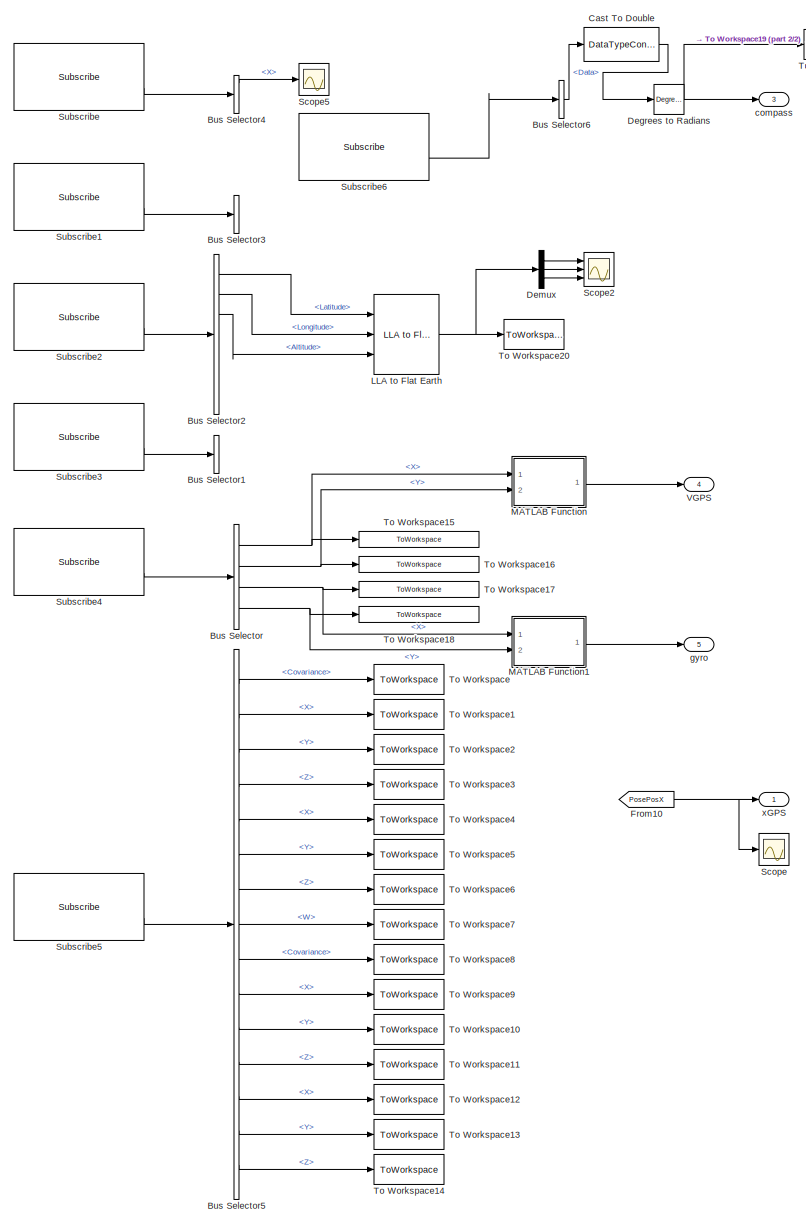
[diagram: GNC/Navigation (DeadReckoning)/Sensor Suite - part 1/2, most of the canvas]
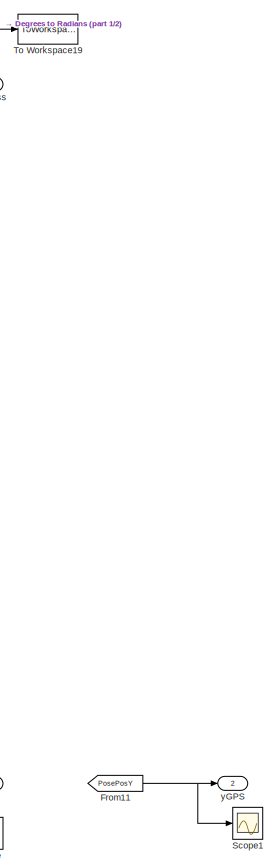
[diagram: GNC/Navigation (DeadReckoning)/Sensor Suite - part 2/2, middle right region]
BLOCK [SubSystem] GNC/Navigation (DeadReckoning)/Sensor Suite
  Ports = [0, 5]
  RequestExecContextInheritance = off
BLOCK [BusSelector] GNC/Navigation (DeadReckoning)/Sensor Suite/Bus Selector
  OutputAsBus = off
  OutputSignals = Twist.Linear.X,Twist.Linear.Y,Twist.Angular.X,Twist.Angular.Y
  Ports = [1, 4]
BLOCK [BusSelector] GNC/Navigation (DeadReckoning)/Sensor Suite/Bus Selector1
  OutputAsBus = off
  OutputSignals = Data
  Ports = [1, 1]
BLOCK [BusSelector] GNC/Navigation (DeadReckoning)/Sensor Suite/Bus Selector2
  OutputAsBus = off
  OutputSignals = Latitude,Longitude,Altitude,PositionCovarianceType,PositionCovariance,Status.Status,Status.Service
  Ports = [1, 7]
BLOCK [BusSelector] GNC/Navigation (DeadReckoning)/Sensor Suite/Bus Selector3
  OutputAsBus = off
  OutputSignals = OrientationCovariance,AngularVelocityCovariance,LinearAccelerationCovariance
  Ports = [1, 3]
BLOCK [BusSelector] GNC/Navigation (DeadReckoning)/Sensor Suite/Bus Selector4
  OutputAsBus = off
  OutputSignals = MagneticField_.X,MagneticField_.Y,MagneticField_.Z,MagneticFieldCovariance
  Ports = [1, 4]
BLOCK [BusSelector] GNC/Navigation (DeadReckoning)/Sensor Suite/Bus Selector5
  OutputAsBus = off
  OutputSignals = Pose.Covariance,Pose.Pose.Position.X,Pose.Pose.Position.Y,Pose.Pose.Position.Z,Pose.Pose.Orientation.X,Pose.Pose.Orientation.Y,Pose.Pose.Orientation.Z,Pose.Pose.Orientation.W,Twist.Covariance,Twist.Twist.Linear.X,Twist.Twist.Linear.Y,Twist.Twist.Linear.Z,Twist.Twist.Angular.X,Twist.Twist.Angular.Y,Twist.Twist.Angular.Z
  Ports = [1, 15]
BLOCK [BusSelector] GNC/Navigation (DeadReckoning)/Sensor Suite/Bus Selector6
  OutputAsBus = off
  OutputSignals = Data
  Ports = [1, 1]
BLOCK [DataTypeConversion] GNC/Navigation (DeadReckoning)/Sensor Suite/Cast To Double
  OutDataTypeStr = double
  RndMeth = Floor
  SaturateOnIntegerOverflow = off
BLOCK [Reference] GNC/Navigation (DeadReckoning)/Sensor Suite/Degrees to Radians  REF=simulink_extras/Transformations/Degrees to
Radians
  Ports = [1, 1]
  SourceBlock = simulink_extras/Transformations/Degrees to\nRadians
  SourceProductBaseCode = SL
  SourceProductName = Simulink
  SourceType = DegreesToRadians
BLOCK [Demux] GNC/Navigation (DeadReckoning)/Sensor Suite/Demux
  DisplayOption = bar
  Outputs = 3
  Ports = [1, 3]
BLOCK [From] GNC/Navigation (DeadReckoning)/Sensor Suite/From10
  GotoTag = PosePosX
BLOCK [From] GNC/Navigation (DeadReckoning)/Sensor Suite/From11
  GotoTag = PosePosY
BLOCK [Reference] GNC/Navigation (DeadReckoning)/Sensor Suite/LLA to Flat Earth  REF=aerolibtransform2/LLA to Flat Earth
  Ports = [3, 1]
  SourceBlock = aerolibtransform2/LLA to Flat Earth
  SourceProductBaseCode = AE
  SourceProductName = Aerospace Blockset
  SourceType = LLA to Flat Earth
BLOCK [SubSystem] GNC/Navigation (DeadReckoning)/Sensor Suite/MATLAB Function
  ErrorFcn = Stateflow.Translate.translate
  PermitHierarchicalResolution = ExplicitOnly
  Ports = [2, 1]
  RequestExecContextInheritance = off
  SFBlockType = MATLAB Function
  TreatAsAtomicUnit = on
BLOCK [Demux] GNC/Navigation (DeadReckoning)/Sensor Suite/MATLAB Function/ Demux 
  Outputs = 1
  Ports = [1, 1]
BLOCK [S-Function] GNC/Navigation (DeadReckoning)/Sensor Suite/MATLAB Function/ SFunction 
  EnableBusSupport = on
  FunctionName = sf_sfun
  PortCounts = [2 2]
  Ports = [2, 2]
  SFcnIsStateOwnerBlock = off
  SFunctionDeploymentMode = off
  Tag = Stateflow S-Function trackVehicleNewVer6b_Encoders_DR_GNC 5
BLOCK [Terminator] GNC/Navigation (DeadReckoning)/Sensor Suite/MATLAB Function/ Terminator 
BLOCK [Outport] GNC/Navigation (DeadReckoning)/Sensor Suite/MATLAB Function/r
  IconDisplay = Port number
BLOCK [Inport] GNC/Navigation (DeadReckoning)/Sensor Suite/MATLAB Function/x
  IconDisplay = Port number
BLOCK [Inport] GNC/Navigation (DeadReckoning)/Sensor Suite/MATLAB Function/y
  IconDisplay = Port number
  Port = 2
BLOCK [SubSystem] GNC/Navigation (DeadReckoning)/Sensor Suite/MATLAB Function1
  ErrorFcn = Stateflow.Translate.translate
  PermitHierarchicalResolution = ExplicitOnly
  Ports = [2, 1]
  RequestExecContextInheritance = off
  SFBlockType = MATLAB Function
  TreatAsAtomicUnit = on
BLOCK [Demux] GNC/Navigation (DeadReckoning)/Sensor Suite/MATLAB Function1/ Demux 
  Outputs = 1
  Ports = [1, 1]
BLOCK [S-Function] GNC/Navigation (DeadReckoning)/Sensor Suite/MATLAB Function1/ SFunction 
  EnableBusSupport = on
  FunctionName = sf_sfun
  PortCounts = [2 2]
  Ports = [2, 2]
  SFcnIsStateOwnerBlock = off
  SFunctionDeploymentMode = off
  Tag = Stateflow S-Function trackVehicleNewVer6b_Encoders_DR_GNC 6
BLOCK [Terminator] GNC/Navigation (DeadReckoning)/Sensor Suite/MATLAB Function1/ Terminator 
BLOCK [Outport] GNC/Navigation (DeadReckoning)/Sensor Suite/MATLAB Function1/r
  IconDisplay = Port number
BLOCK [Inport] GNC/Navigation (DeadReckoning)/Sensor Suite/MATLAB Function1/x
  IconDisplay = Port number
BLOCK [Inport] GNC/Navigation (DeadReckoning)/Sensor Suite/MATLAB Function1/y
  IconDisplay = Port number
  Port = 2
BLOCK [Scope] GNC/Navigation (DeadReckoning)/Sensor Suite/Scope
  Floating = off
  NumInputPorts = 1
  Ports = [1]
  ScopeSpecificationString = Simulink.scopes.TimeScopeBlockCfg('CurrentConfiguration', extmgr.ConfigurationSet(extmgr.Configuration('Core','General UI',true),extmgr.Configuration('Core','Source UI',true),extmgr.Configuration('Sources','WiredSimulink',true,'DataLoggingVariableName','ScopeData3'),extmgr.Configuration('Visuals','Time Domain',true,'SerializedDisplays',{struct('MinYLimReal','-1.00000','MaxYLimReal','1.00000','YLab...<+1446ch>
BLOCK [Scope] GNC/Navigation (DeadReckoning)/Sensor Suite/Scope1
  Floating = off
  NumInputPorts = 1
  Ports = [1]
  ScopeSpecificationString = Simulink.scopes.TimeScopeBlockCfg('CurrentConfiguration', extmgr.ConfigurationSet(extmgr.Configuration('Core','General UI',true),extmgr.Configuration('Core','Source UI',true),extmgr.Configuration('Sources','WiredSimulink',true,'DataLoggingVariableName','ScopeData4','DataLoggingLimitDataPoints',true,'DataLoggingSaveFormat','Array','DataLoggingDecimation','1','DataLoggingDecimateData',true),extmgr.C...<+165ch>
BLOCK [Scope] GNC/Navigation (DeadReckoning)/Sensor Suite/Scope2
  Floating = off
  NumInputPorts = 3
  Ports = [3]
  ScopeSpecificationString = Simulink.scopes.TimeScopeBlockCfg('CurrentConfiguration', extmgr.ConfigurationSet(extmgr.Configuration('Core','General UI',true),extmgr.Configuration('Core','Source UI',true),extmgr.Configuration('Sources','WiredSimulink',true,'DataLoggingVariableName','ScopeData1'),extmgr.Configuration('Visuals','Time Domain',true,'SerializedDisplays',{struct('MinYLimReal','3619333.28751','MaxYLimReal','3619334.1...<+2754ch>
BLOCK [Scope] GNC/Navigation (DeadReckoning)/Sensor Suite/Scope5
  Floating = off
  NumInputPorts = 1
  Ports = [1]
  ScopeSpecificationString = Simulink.scopes.TimeScopeBlockCfg('CurrentConfiguration', extmgr.ConfigurationSet(extmgr.Configuration('Core','General UI',true),extmgr.Configuration('Core','Source UI',true),extmgr.Configuration('Sources','WiredSimulink',true,'DataLoggingVariableName','ScopeData2'),extmgr.Configuration('Visuals','Time Domain',true,'SerializedDisplays',{struct('MinYLimReal','75500.00000','MaxYLimReal','80500.00000...<+1470ch>
BLOCK [Reference] GNC/Navigation (DeadReckoning)/Sensor Suite/Subscribe  REF=robotlib/Subscribe
  Ports = [0, 2]
  SourceBlock = robotlib/Subscribe
  SourceLibraryInfo = This block requires Robotics System Toolbox
  SourceProductBaseCode = RO
  SourceProductName = Robotics System Toolbox
  SourceType = ROS Subscribe
BLOCK [Reference] GNC/Navigation (DeadReckoning)/Sensor Suite/Subscribe1  REF=robotlib/Subscribe
  Ports = [0, 2]
  SourceBlock = robotlib/Subscribe
  SourceLibraryInfo = This block requires Robotics System Toolbox
  SourceProductBaseCode = RO
  SourceProductName = Robotics System Toolbox
  SourceType = ROS Subscribe
BLOCK [Reference] GNC/Navigation (DeadReckoning)/Sensor Suite/Subscribe2  REF=robotlib/Subscribe
  Ports = [0, 2]
  SourceBlock = robotlib/Subscribe
  SourceLibraryInfo = This block requires Robotics System Toolbox
  SourceProductBaseCode = RO
  SourceProductName = Robotics System Toolbox
  SourceType = ROS Subscribe
BLOCK [Reference] GNC/Navigation (DeadReckoning)/Sensor Suite/Subscribe3  REF=robotlib/Subscribe
  Ports = [0, 2]
  SourceBlock = robotlib/Subscribe
  SourceLibraryInfo = This block requires Robotics System Toolbox
  SourceProductBaseCode = RO
  SourceProductName = Robotics System Toolbox
  SourceType = ROS Subscribe
BLOCK [Reference] GNC/Navigation (DeadReckoning)/Sensor Suite/Subscribe4  REF=robotlib/Subscribe
  Ports = [0, 2]
  SourceBlock = robotlib/Subscribe
  SourceLibraryInfo = This block requires Robotics System Toolbox
  SourceProductBaseCode = RO
  SourceProductName = Robotics System Toolbox
  SourceType = ROS Subscribe
BLOCK [Reference] GNC/Navigation (DeadReckoning)/Sensor Suite/Subscribe5  REF=robotlib/Subscribe
  Ports = [0, 2]
  SourceBlock = robotlib/Subscribe
  SourceLibraryInfo = This block requires Robotics System Toolbox
  SourceProductBaseCode = RO
  SourceProductName = Robotics System Toolbox
  SourceType = ROS Subscribe
BLOCK [Reference] GNC/Navigation (DeadReckoning)/Sensor Suite/Subscribe6  REF=robotlib/Subscribe
  Ports = [0, 2]
  SourceBlock = robotlib/Subscribe
  SourceLibraryInfo = This block requires Robotics System Toolbox
  SourceProductBaseCode = RO
  SourceProductName = Robotics System Toolbox
  SourceType = ROS Subscribe
BLOCK [ToWorkspace] GNC/Navigation (DeadReckoning)/Sensor Suite/To Workspace
  FixptAsFi = on
  MaxDataPoints = inf
  Ports = [1]
  SampleTime = -1
  Save2DSignal = 3-D array (concatenate along third dimension)
  SaveFormat = Timeseries
  VariableName = PoseCov
BLOCK [ToWorkspace] GNC/Navigation (DeadReckoning)/Sensor Suite/To Workspace1
  FixptAsFi = on
  MaxDataPoints = inf
  Ports = [1]
  SampleTime = -1
  Save2DSignal = 3-D array (concatenate along third dimension)
  SaveFormat = Timeseries
  VariableName = PosePosX
BLOCK [ToWorkspace] GNC/Navigation (DeadReckoning)/Sensor Suite/To Workspace10
  FixptAsFi = on
  MaxDataPoints = inf
  Ports = [1]
  SampleTime = -1
  Save2DSignal = 3-D array (concatenate along third dimension)
  SaveFormat = Timeseries
  VariableName = TwistLinY
BLOCK [ToWorkspace] GNC/Navigation (DeadReckoning)/Sensor Suite/To Workspace11
  FixptAsFi = on
  MaxDataPoints = inf
  Ports = [1]
  SampleTime = -1
  Save2DSignal = 3-D array (concatenate along third dimension)
  SaveFormat = Timeseries
  VariableName = TwistLinZ
BLOCK [ToWorkspace] GNC/Navigation (DeadReckoning)/Sensor Suite/To Workspace12
  FixptAsFi = on
  MaxDataPoints = inf
  Ports = [1]
  SampleTime = -1
  Save2DSignal = 3-D array (concatenate along third dimension)
  SaveFormat = Timeseries
  VariableName = TwistAngX
BLOCK [ToWorkspace] GNC/Navigation (DeadReckoning)/Sensor Suite/To Workspace13
  FixptAsFi = on
  MaxDataPoints = inf
  Ports = [1]
  SampleTime = -1
  Save2DSignal = 3-D array (concatenate along third dimension)
  SaveFormat = Timeseries
  VariableName = TwistAngY
BLOCK [ToWorkspace] GNC/Navigation (DeadReckoning)/Sensor Suite/To Workspace14
  FixptAsFi = on
  MaxDataPoints = inf
  Ports = [1]
  SampleTime = -1
  Save2DSignal = 3-D array (concatenate along third dimension)
  SaveFormat = Timeseries
  VariableName = TwistAngZ
BLOCK [ToWorkspace] GNC/Navigation (DeadReckoning)/Sensor Suite/To Workspace15
  FixptAsFi = on
  MaxDataPoints = inf
  Ports = [1]
  SampleTime = -1
  Save2DSignal = 3-D array (concatenate along third dimension)
  SaveFormat = Timeseries
  VariableName = LinearVelocityX
BLOCK [ToWorkspace] GNC/Navigation (DeadReckoning)/Sensor Suite/To Workspace16
  FixptAsFi = on
  MaxDataPoints = inf
  Ports = [1]
  SampleTime = -1
  Save2DSignal = 3-D array (concatenate along third dimension)
  SaveFormat = Timeseries
  VariableName = LinearVelocityY
BLOCK [ToWorkspace] GNC/Navigation (DeadReckoning)/Sensor Suite/To Workspace17
  FixptAsFi = on
  MaxDataPoints = inf
  Ports = [1]
  SampleTime = -1
  Save2DSignal = 3-D array (concatenate along third dimension)
  SaveFormat = Timeseries
  VariableName = AngularVelocityX
BLOCK [ToWorkspace] GNC/Navigation (DeadReckoning)/Sensor Suite/To Workspace18
  FixptAsFi = on
  MaxDataPoints = inf
  Ports = [1]
  SampleTime = -1
  Save2DSignal = 3-D array (concatenate along third dimension)
  SaveFormat = Timeseries
  VariableName = AngularVelocityY
BLOCK [ToWorkspace] GNC/Navigation (DeadReckoning)/Sensor Suite/To Workspace19
  FixptAsFi = on
  MaxDataPoints = inf
  Ports = [1]
  SampleTime = -1
  Save2DSignal = 3-D array (concatenate along third dimension)
  SaveFormat = Timeseries
  VariableName = Compass_Hdg
BLOCK [ToWorkspace] GNC/Navigation (DeadReckoning)/Sensor Suite/To Workspace2
  FixptAsFi = on
  MaxDataPoints = inf
  Ports = [1]
  SampleTime = -1
  Save2DSignal = 3-D array (concatenate along third dimension)
  SaveFormat = Timeseries
  VariableName = PosePosY
BLOCK [ToWorkspace] GNC/Navigation (DeadReckoning)/Sensor Suite/To Workspace20
  FixptAsFi = on
  MaxDataPoints = inf
  Ports = [1]
  SampleTime = -1
  Save2DSignal = 3-D array (concatenate along third dimension)
  SaveFormat = Timeseries
  VariableName = FlatEarth
BLOCK [ToWorkspace] GNC/Navigation (DeadReckoning)/Sensor Suite/To Workspace3
  FixptAsFi = on
  MaxDataPoints = inf
  Ports = [1]
  SampleTime = -1
  Save2DSignal = 3-D array (concatenate along third dimension)
  SaveFormat = Timeseries
  VariableName = PosePosZ
BLOCK [ToWorkspace] GNC/Navigation (DeadReckoning)/Sensor Suite/To Workspace4
  FixptAsFi = on
  MaxDataPoints = inf
  Ports = [1]
  SampleTime = -1
  Save2DSignal = 3-D array (concatenate along third dimension)
  SaveFormat = Timeseries
  VariableName = PoseOriX
BLOCK [ToWorkspace] GNC/Navigation (DeadReckoning)/Sensor Suite/To Workspace5
  FixptAsFi = on
  MaxDataPoints = inf
  Ports = [1]
  SampleTime = -1
  Save2DSignal = 3-D array (concatenate along third dimension)
  SaveFormat = Timeseries
  VariableName = PoseOriY
BLOCK [ToWorkspace] GNC/Navigation (DeadReckoning)/Sensor Suite/To Workspace6
  FixptAsFi = on
  MaxDataPoints = inf
  Ports = [1]
  SampleTime = -1
  Save2DSignal = 3-D array (concatenate along third dimension)
  SaveFormat = Timeseries
  VariableName = PoseOriZ
BLOCK [ToWorkspace] GNC/Navigation (DeadReckoning)/Sensor Suite/To Workspace7
  FixptAsFi = on
  MaxDataPoints = inf
  Ports = [1]
  SampleTime = -1
  Save2DSignal = 3-D array (concatenate along third dimension)
  SaveFormat = Timeseries
  VariableName = PoseOriW
BLOCK [ToWorkspace] GNC/Navigation (DeadReckoning)/Sensor Suite/To Workspace8
  FixptAsFi = on
  MaxDataPoints = inf
  Ports = [1]
  SampleTime = -1
  Save2DSignal = 3-D array (concatenate along third dimension)
  SaveFormat = Timeseries
  VariableName = TwistCov
BLOCK [ToWorkspace] GNC/Navigation (DeadReckoning)/Sensor Suite/To Workspace9
  FixptAsFi = on
  MaxDataPoints = inf
  Ports = [1]
  SampleTime = -1
  Save2DSignal = 3-D array (concatenate along third dimension)
  SaveFormat = Timeseries
  VariableName = TwistLinX
BLOCK [Outport] GNC/Navigation (DeadReckoning)/Sensor Suite/VGPS
  IconDisplay = Port number
  Port = 4
BLOCK [Outport] GNC/Navigation (DeadReckoning)/Sensor Suite/compass
  IconDisplay = Port number
  Port = 3
BLOCK [Outport] GNC/Navigation (DeadReckoning)/Sensor Suite/gyro
  IconDisplay = Port number
  Port = 5
BLOCK [Outport] GNC/Navigation (DeadReckoning)/Sensor Suite/xGPS
  IconDisplay = Port number
BLOCK [Outport] GNC/Navigation (DeadReckoning)/Sensor Suite/yGPS
  IconDisplay = Port number
  Port = 2
BLOCK [ToWorkspace] GNC/Navigation (DeadReckoning)/To Workspace
  FixptAsFi = on
  MaxDataPoints = inf
  Ports = [1]
  SampleTime = -1
  Save2DSignal = 3-D array (concatenate along third dimension)
  SaveFormat = Timeseries
  VariableName = kalmanCovariance
BLOCK [SubSystem] GNC/Navigation (DeadReckoning)/WheelSpeed
  Ports = [2, 2]
  RequestExecContextInheritance = off
BLOCK [Abs] GNC/Navigation (DeadReckoning)/WheelSpeed/Abs
  SaturateOnIntegerOverflow = off
BLOCK [Abs] GNC/Navigation (DeadReckoning)/WheelSpeed/Abs1
  SaturateOnIntegerOverflow = off
BLOCK [Reference] GNC/Navigation (DeadReckoning)/WheelSpeed/Compare To Constant  REF=simulink/Logic and Bit
Operations/Compare
To Constant
  Ports = [1, 1]
  SourceBlock = simulink/Logic and Bit\nOperations/Compare\nTo Constant
  SourceProductBaseCode = SL
  SourceProductName = Simulink
  SourceType = Compare To Constant
BLOCK [Reference] GNC/Navigation (DeadReckoning)/WheelSpeed/Compare To Constant1  REF=simulink/Logic and Bit
Operations/Compare
To Constant
  Ports = [1, 1]
  SourceBlock = simulink/Logic and Bit\nOperations/Compare\nTo Constant
  SourceProductBaseCode = SL
  SourceProductName = Simulink
  SourceType = Compare To Constant
BLOCK [Gain] GNC/Navigation (DeadReckoning)/WheelSpeed/Gin1
  Gain = 1/(eTickDR*rNominalDR*TsampleEncoderDR)
  OutDataTypeStr = double
  ParamDataTypeStr = Inherit: Inherit via internal rule
  SampleTime = TsampleEncoderDR
  SaturateOnIntegerOverflow = off
BLOCK [Gain] GNC/Navigation (DeadReckoning)/WheelSpeed/Gin2
  Gain = 1/(eTickDR*rNominalDR*TsampleEncoderDR)
  OutDataTypeStr = double
  ParamDataTypeStr = Inherit: Inherit via internal rule
  SampleTime = TsampleEncoderDR
  SaturateOnIntegerOverflow = off
BLOCK [Gain] GNC/Navigation (DeadReckoning)/WheelSpeed/Gin3
  Gain = 1/(eTickDR*rNominalDR*TsampleEncoderDR)
  OutDataTypeStr = double
  ParamDataTypeStr = Inherit: Inherit via internal rule
  SampleTime = TsampleEncoderDR
  SaturateOnIntegerOverflow = off
BLOCK [Gain] GNC/Navigation (DeadReckoning)/WheelSpeed/Gin4
  Gain = 1/(eTickDR*rNominalDR*TsampleEncoderDR)
  OutDataTypeStr = double
  ParamDataTypeStr = Inherit: Inherit via internal rule
  SampleTime = TsampleEncoderDR
  SaturateOnIntegerOverflow = off
BLOCK [Mux] GNC/Navigation (DeadReckoning)/WheelSpeed/Mux2
  DisplayOption = bar
  Inputs = 2
  Ports = [2, 1]
BLOCK [Sum] GNC/Navigation (DeadReckoning)/WheelSpeed/Sum
  IconShape = round
  InputSameDT = off
  Inputs = |-+
  OutDataTypeStr = Inherit: Inherit via internal rule
  Ports = [2, 1]
  SaturateOnIntegerOverflow = off
BLOCK [Sum] GNC/Navigation (DeadReckoning)/WheelSpeed/Sum1
  IconShape = round
  InputSameDT = off
  Inputs = -+|
  OutDataTypeStr = Inherit: Inherit via internal rule
  Ports = [2, 1]
  SaturateOnIntegerOverflow = off
BLOCK [Sum] GNC/Navigation (DeadReckoning)/WheelSpeed/Sum2
  IconShape = round
  InputSameDT = off
  Inputs = |-+
  OutDataTypeStr = Inherit: Inherit via internal rule
  Ports = [2, 1]
  SaturateOnIntegerOverflow = off
BLOCK [Sum] GNC/Navigation (DeadReckoning)/WheelSpeed/Sum3
  IconShape = round
  InputSameDT = off
  Inputs = -+|
  OutDataTypeStr = Inherit: Inherit via internal rule
  Ports = [2, 1]
  SaturateOnIntegerOverflow = off
BLOCK [Switch] GNC/Navigation (DeadReckoning)/WheelSpeed/Switch
  InputSameDT = off
  SaturateOnIntegerOverflow = off
  Threshold = 0.5
BLOCK [Switch] GNC/Navigation (DeadReckoning)/WheelSpeed/Switch1
  InputSameDT = off
  SaturateOnIntegerOverflow = off
  Threshold = 0.5
BLOCK [UnitDelay] GNC/Navigation (DeadReckoning)/WheelSpeed/Unit Delay
  SampleTime = TsampleEncoderDR
BLOCK [UnitDelay] GNC/Navigation (DeadReckoning)/WheelSpeed/Unit Delay1
  SampleTime = TsampleEncoderDR
BLOCK [UnitDelay] GNC/Navigation (DeadReckoning)/WheelSpeed/Unit Delay2
  SampleTime = TsampleEncoderDR
BLOCK [UnitDelay] GNC/Navigation (DeadReckoning)/WheelSpeed/Unit Delay3
  SampleTime = TsampleEncoderDR
BLOCK [DiscreteTransferFcn] GNC/Navigation (DeadReckoning)/WheelSpeed/ZOH
  Denominator = [1  -exp(-TsampleEncoderDR/TauEncoderDR)]
  InputPortMap = u0
  Numerator = [1-exp(-TsampleEncoderDR/TauEncoderDR)]
  Ports = [1, 1]
  SampleTime = TsampleEncoderDR
BLOCK [DiscreteTransferFcn] GNC/Navigation (DeadReckoning)/WheelSpeed/ZOH1
  Denominator = [1  -exp(-TsampleEncoderDR/TauEncoderDR)]
  InputPortMap = u0
  Numerator = [1-exp(-TsampleEncoderDR/TauEncoderDR)]
  Ports = [1, 1]
  SampleTime = TsampleEncoderDR
BLOCK [Inport] GNC/Navigation (DeadReckoning)/WheelSpeed/eCountL
  IconDisplay = Port number
  Port = 2
BLOCK [Inport] GNC/Navigation (DeadReckoning)/WheelSpeed/eCountR
  IconDisplay = Port number
BLOCK [Scope] GNC/Navigation (DeadReckoning)/WheelSpeed/speedEstimated
  Floating = off
  NumInputPorts = 1
  Ports = [1]
  ScopeSpecificationString = Simulink.scopes.TimeScopeBlockCfg('CurrentConfiguration', extmgr.ConfigurationSet(extmgr.Configuration('Core','General UI',true),extmgr.Configuration('Core','Source UI',true),extmgr.Configuration('Sources','WiredSimulink',true,'DataLoggingVariableName','ScopeData2','DataLoggingSaveFormat','StructureWithTime','DataLoggingDecimation','1','DataLoggingDecimateData',true),extmgr.Configuration('Visuals'...<+1771ch>
BLOCK [Outport] GNC/Navigation (DeadReckoning)/WheelSpeed/wL
  IconDisplay = Port number
  Port = 2
BLOCK [Outport] GNC/Navigation (DeadReckoning)/WheelSpeed/wR
  IconDisplay = Port number
BLOCK [Outport] GNC/Navigation (DeadReckoning)/angleEst
  IconDisplay = Port number
  Port = 2
BLOCK [Outport] GNC/Navigation (DeadReckoning)/angleEst1
  IconDisplay = Port number
  Port = 6
BLOCK [Inport] GNC/Navigation (DeadReckoning)/eCountL
  IconDisplay = Port number
  Port = 2
BLOCK [Inport] GNC/Navigation (DeadReckoning)/eCountR
  IconDisplay = Port number
BLOCK [Outport] GNC/Navigation (DeadReckoning)/velEst
  IconDisplay = Port number
BLOCK [Outport] GNC/Navigation (DeadReckoning)/velEst1
  IconDisplay = Port number
  Port = 5
BLOCK [Outport] GNC/Navigation (DeadReckoning)/xEst
  IconDisplay = Port number
  Port = 3
BLOCK [Outport] GNC/Navigation (DeadReckoning)/xEst1
  IconDisplay = Port number
  Port = 7
BLOCK [Outport] GNC/Navigation (DeadReckoning)/yEst
  IconDisplay = Port number
  Port = 4
BLOCK [Outport] GNC/Navigation (DeadReckoning)/yEst1
  IconDisplay = Port number
  Port = 8
BLOCK [Scope] GNC/Scope
  Floating = off
  NumInputPorts = 2
  Ports = [2]
  ScopeSpecificationString = Simulink.scopes.TimeScopeBlockCfg('CurrentConfiguration', extmgr.ConfigurationSet(extmgr.Configuration('Core','General UI',true),extmgr.Configuration('Core','Source UI',true),extmgr.Configuration('Sources','WiredSimulink',true,'DataLoggingVariableName','ScopeData1'),extmgr.Configuration('Visuals','Time Domain',true,'SerializedDisplays',{struct('MinYLimReal','-0.07031','MaxYLimReal','0.63281','YLab...<+1429ch>
BLOCK [Scope] GNC/Scope1
  Floating = off
  NumInputPorts = 2
  Ports = [2]
  ScopeSpecificationString = Simulink.scopes.TimeScopeBlockCfg('CurrentConfiguration', extmgr.ConfigurationSet(extmgr.Configuration('Core','General UI',true),extmgr.Configuration('Core','Source UI',true),extmgr.Configuration('Sources','WiredSimulink',true,'DataLoggingVariableName','ScopeData2'),extmgr.Configuration('Visuals','Time Domain',true,'InputProcessing','FrameProcessing','SerializedDisplays',{struct('MinYLimReal','-1....<+2057ch>
BLOCK [Inport] GNC/Sonar 
  IconDisplay = Port number
  Port = 3
BLOCK [Stop] GNC/Stop Simulation
BLOCK [Inport] GNC/eCountL
  IconDisplay = Port number
  Port = 2
BLOCK [Inport] GNC/eCountR
  IconDisplay = Port number
BLOCK [Lookup] GNC/wheelSpeed2DutyCycleL
  InputValues = wArrayL
  LookUpMeth = Interpolation-Use End Values
  SaturateOnIntegerOverflow = off
  Table = dcArrayL
BLOCK [Lookup] GNC/wheelSpeed2DutyCycleR
  InputValues = wArrayR
  LookUpMeth = Interpolation-Use End Values
  SaturateOnIntegerOverflow = off
  Table = dcArrayR
BLOCK [SubSystem] MATLAB Function1
  ErrorFcn = Stateflow.Translate.translate
  PermitHierarchicalResolution = ExplicitOnly
  Ports = [1, 2]
  RequestExecContextInheritance = off
  SFBlockType = MATLAB Function
  TreatAsAtomicUnit = on
BLOCK [Demux] MATLAB Function1/ Demux 
  Outputs = 1
  Ports = [1, 1]
BLOCK [S-Function] MATLAB Function1/ SFunction 
  EnableBusSupport = on
  FunctionName = sf_sfun
  PortCounts = [1 3]
  Ports = [1, 3]
  SFcnIsStateOwnerBlock = off
  SFunctionDeploymentMode = off
  Tag = Stateflow S-Function trackVehicleNewVer6b_Encoders_DR_GNC 3
BLOCK [Terminator] MATLAB Function1/ Terminator 
BLOCK [Outport] MATLAB Function1/sL
  IconDisplay = Port number
  Port = 2
BLOCK [Outport] MATLAB Function1/sR
  IconDisplay = Port number
BLOCK [Inport] MATLAB Function1/tT
  IconDisplay = Port number
BLOCK [ManualSwitch] Manual Switch
BLOCK [ManualSwitch] Manual Switch1
BLOCK [Mux] Mux
  DisplayOption = bar
  Inputs = 2
  Ports = [2, 1]
BLOCK [Mux] Mux1
  DisplayOption = bar
  Inputs = 2
  Ports = [2, 1]
BLOCK [Mux] Mux2
  DisplayOption = bar
  Inputs = 2
  Ports = [2, 1]
BLOCK [Mux] Mux4
  DisplayOption = bar
  Inputs = 3
  Ports = [3, 1]
BLOCK [Mux] Mux5
  DisplayOption = bar
  Inputs = 3
  Ports = [3, 1]
BLOCK [Mux] Mux6
  DisplayOption = bar
  Inputs = 2
  Ports = [2, 1]
BLOCK [Mux] Mux7
  DisplayOption = bar
  Inputs = 2
  Ports = [2, 1]
BLOCK [Scope] Scope
  Floating = off
  NumInputPorts = 1
  Ports = [1]
  ScopeSpecificationString = Simulink.scopes.TimeScopeBlockCfg('CurrentConfiguration', extmgr.ConfigurationSet(extmgr.Configuration('Core','General UI',true),extmgr.Configuration('Core','Source UI',true),extmgr.Configuration('Sources','WiredSimulink',true,'DataLoggingVariableName','ScopeData1'),extmgr.Configuration('Visuals','Time Domain',true,'SerializedDisplays',{struct('MinYLimReal','-382.00000','MaxYLimReal','3438.00000',...<+1537ch>
BLOCK [SubSystem] SendDutyToVehicle
  Ports = [1]
  RequestExecContextInheritance = off
BLOCK [Reference] SendDutyToVehicle/Blank Message  REF=robotlib/Blank Message
  Ports = [0, 1]
  SourceBlock = robotlib/Blank Message
  SourceLibraryInfo = This block requires Robotics System Toolbox
  SourceProductBaseCode = RO
  SourceProductName = Robotics System Toolbox
  SourceType = ROS Blank Message
BLOCK [Reference] SendDutyToVehicle/Blank Message1  REF=robotlib/Blank Message
  Ports = [0, 1]
  SourceBlock = robotlib/Blank Message
  SourceLibraryInfo = This block requires Robotics System Toolbox
  SourceProductBaseCode = RO
  SourceProductName = Robotics System Toolbox
  SourceType = ROS Blank Message
BLOCK [BusAssignment] SendDutyToVehicle/Bus Assignment
  AssignedSignals = Data
  Ports = [2, 1]
BLOCK [BusAssignment] SendDutyToVehicle/Bus Assignment1
  AssignedSignals = Data
  Ports = [2, 1]
BLOCK [Demux] SendDutyToVehicle/Demux
  DisplayOption = bar
  Outputs = 2
  Ports = [1, 2]
BLOCK [Inport] SendDutyToVehicle/DutyCycle 
  IconDisplay = Port number
BLOCK [SubSystem] SendDutyToVehicle/MATLAB Function
  ErrorFcn = Stateflow.Translate.translate
  PermitHierarchicalResolution = ExplicitOnly
  Ports = [1, 1]
  RequestExecContextInheritance = off
  SFBlockType = MATLAB Function
  TreatAsAtomicUnit = on
BLOCK [Demux] SendDutyToVehicle/MATLAB Function/ Demux 
  Outputs = 1
  Ports = [1, 1]
BLOCK [S-Function] SendDutyToVehicle/MATLAB Function/ SFunction 
  EnableBusSupport = on
  FunctionName = sf_sfun
  PortCounts = [1 2]
  Ports = [1, 2]
  SFcnIsStateOwnerBlock = off
  SFunctionDeploymentMode = off
  Tag = Stateflow S-Function trackVehicleNewVer6b_Encoders_DR_GNC 7
BLOCK [Terminator] SendDutyToVehicle/MATLAB Function/ Terminator 
BLOCK [Inport] SendDutyToVehicle/MATLAB Function/DutyCycle
  IconDisplay = Port number
BLOCK [Outport] SendDutyToVehicle/MATLAB Function/PWM
  IconDisplay = Port number
BLOCK [SubSystem] SendDutyToVehicle/MATLAB Function4
  ErrorFcn = Stateflow.Translate.translate
  PermitHierarchicalResolution = ExplicitOnly
  Ports = [1, 1]
  RequestExecContextInheritance = off
  SFBlockType = MATLAB Function
  TreatAsAtomicUnit = on
BLOCK [Demux] SendDutyToVehicle/MATLAB Function4/ Demux 
  Outputs = 1
  Ports = [1, 1]
BLOCK [S-Function] SendDutyToVehicle/MATLAB Function4/ SFunction 
  EnableBusSupport = on
  FunctionName = sf_sfun
  PortCounts = [1 2]
  Ports = [1, 2]
  SFcnIsStateOwnerBlock = off
  SFunctionDeploymentMode = off
  Tag = Stateflow S-Function trackVehicleNewVer6b_Encoders_DR_GNC 8
BLOCK [Terminator] SendDutyToVehicle/MATLAB Function4/ Terminator 
BLOCK [Inport] SendDutyToVehicle/MATLAB Function4/DutyCycle
  IconDisplay = Port number
BLOCK [Outport] SendDutyToVehicle/MATLAB Function4/PWM
  IconDisplay = Port number
BLOCK [Reference] SendDutyToVehicle/Publish1  REF=robotlib/Publish
  Ports = [1]
  SourceBlock = robotlib/Publish
  SourceLibraryInfo = This block requires Robotics System Toolbox
  SourceProductBaseCode = RO
  SourceProductName = Robotics System Toolbox
  SourceType = ROS Publish
BLOCK [Reference] SendDutyToVehicle/pwmCommand  REF=robotlib/Publish
  Ports = [1]
  SourceBlock = robotlib/Publish
  SourceLibraryInfo = This block requires Robotics System Toolbox
  SourceProductBaseCode = RO
  SourceProductName = Robotics System Toolbox
  SourceType = ROS Publish
BLOCK [Scope] SendDutyToVehicle/{PWML, PWMR} Values
  Floating = off
  NumInputPorts = 2
  Ports = [2]
  ScopeSpecificationString = Simulink.scopes.TimeScopeBlockCfg('CurrentConfiguration', extmgr.ConfigurationSet(extmgr.Configuration('Core','General UI',true),extmgr.Configuration('Core','Source UI',true),extmgr.Configuration('Sources','WiredSimulink',true,'DataLoggingVariableName','ScopeData3','DataLoggingSaveFormat','StructureWithTime','DataLoggingDecimation','1','DataLoggingDecimateData',true),extmgr.Configuration('Visuals'...<+2320ch>
BLOCK [SubSystem] SonarFromVehicle
  Ports = [0, 1]
  RequestExecContextInheritance = off
BLOCK [BusSelector] SonarFromVehicle/Bus Selector2
  OutputAsBus = off
  OutputSignals = Range_
  Ports = [1, 1]
BLOCK [Outport] SonarFromVehicle/Sonar
  IconDisplay = Port number
BLOCK [Reference] SonarFromVehicle/SonarReading  REF=robotlib/Subscribe
  Ports = [0, 2]
  SourceBlock = robotlib/Subscribe
  SourceLibraryInfo = This block requires Robotics System Toolbox
  SourceProductBaseCode = RO
  SourceProductName = Robotics System Toolbox
  SourceType = ROS Subscribe
BLOCK [Terminator] SonarFromVehicle/Terminator2
BLOCK [SubSystem] Tank
  Ports = [4, 2]
  RequestExecContextInheritance = off
BLOCK [Demux] Tank/Demux1
  DisplayOption = bar
  Outputs = 2
  Ports = [1, 2]
BLOCK [Lookup] Tank/DutyCycle2wheelSpeedL
  InputValues = dcArrayL
  LookUpMeth = Interpolation-Use End Values
  SaturateOnIntegerOverflow = off
  Table = wArrayL
BLOCK [Lookup] Tank/DutyCycle2wheelSpeedR
  InputValues = dcArrayL
  LookUpMeth = Interpolation-Use End Values
  SaturateOnIntegerOverflow = off
  Table = wArrayL
BLOCK [Inport] Tank/DutyCycleL
  IconDisplay = Port number
  Port = 2
BLOCK [Inport] Tank/DutyCycleR
  IconDisplay = Port number
BLOCK [Goto] Tank/Goto
  GotoTag = wRact
  TagVisibility = global
BLOCK [Goto] Tank/Goto1
  GotoTag = wLact
  TagVisibility = global
BLOCK [Goto] Tank/Goto2
  GotoTag = Vact
  TagVisibility = global
BLOCK [Goto] Tank/Goto3
  GotoTag = Xact
  TagVisibility = global
BLOCK [Goto] Tank/Goto4
  GotoTag = Yact
  TagVisibility = global
BLOCK [Goto] Tank/Goto5
  GotoTag = thetaAct
  TagVisibility = global
BLOCK [Integrator] Tank/Integrator
  InitialCondition = [xIC; yIC ; thetaIC]
  Ports = [1, 1]
BLOCK [SubSystem] Tank/Left Encoder
  Ports = [1, 1]
  RequestExecContextInheritance = off
BLOCK [RateTransition] Tank/Left Encoder/Rate Transition1
BLOCK [Integrator] Tank/Left Encoder/WheelAngleL
  Ports = [1, 1]
BLOCK [Gain] Tank/Left Encoder/angle2tick2
  Gain = eTick*rl
  OutDataTypeStr = int16
  ParamDataTypeStr = Inherit: Inherit via internal rule
  SampleTime = TsampleEncoder
  SaturateOnIntegerOverflow = off
BLOCK [Outport] Tank/Left Encoder/eCount
  IconDisplay = Port number
BLOCK [Inport] Tank/Left Encoder/w
  IconDisplay = Port number
BLOCK [Inport] Tank/LeftSlippage
  IconDisplay = Port number
  Port = 4
BLOCK [SubSystem] Tank/MATLAB Function
  ErrorFcn = Stateflow.Translate.translate
  PermitHierarchicalResolution = ExplicitOnly
  Ports = [1, 1]
  RequestExecContextInheritance = off
  SFBlockType = MATLAB Function
  TreatAsAtomicUnit = on
BLOCK [Demux] Tank/MATLAB Function/ Demux 
  Outputs = 1
  Ports = [1, 1]
BLOCK [S-Function] Tank/MATLAB Function/ SFunction 
  EnableBusSupport = on
  FunctionName = sf_sfun
  Parameters = b,rl,rr
  PortCounts = [1 2]
  Ports = [1, 2]
  SFcnIsStateOwnerBlock = off
  SFunctionDeploymentMode = off
  Tag = Stateflow S-Function trackVehicleNewVer6b_Encoders_DR_GNC 1
BLOCK [Terminator] Tank/MATLAB Function/ Terminator 
BLOCK [Inport] Tank/MATLAB Function/u
  IconDisplay = Port number
BLOCK [Outport] Tank/MATLAB Function/x_dot
  IconDisplay = Port number
BLOCK [Mux] Tank/Mux
  DisplayOption = bar
  Inputs = 5
  Ports = [5, 1]
BLOCK [RateTransition] Tank/Rate Transition1
BLOCK [RateTransition] Tank/Rate Transition2
BLOCK [SubSystem] Tank/Right Encoder
  Ports = [1, 1]
  RequestExecContextInheritance = off
BLOCK [RateTransition] Tank/Right Encoder/Rate Transition1
BLOCK [Integrator] Tank/Right Encoder/WheelAngleR
  Ports = [1, 1]
BLOCK [Gain] Tank/Right Encoder/angle2tick1
  Gain = eTick*rr
  OutDataTypeStr = int16
  ParamDataTypeStr = Inherit: Inherit via internal rule
  SampleTime = TsampleEncoder
  SaturateOnIntegerOverflow = off
BLOCK [Outport] Tank/Right Encoder/eCount
  IconDisplay = Port number
BLOCK [Inport] Tank/Right Encoder/w
  IconDisplay = Port number
BLOCK [Inport] Tank/RightSlippage
  IconDisplay = Port number
  Port = 3
BLOCK [Selector] Tank/Select dX//dt and dY//dt
  IndexOptions = Index vector (dialog)
  Indices = [1 2]
  InputPortWidth = 3
  OutputSizes = 1
  Ports = [1, 1]
BLOCK [Selector] Tank/Select theta
  IndexOptions = Index vector (dialog)
  Indices = 3
  InputPortWidth = 3
  OutputSizes = 1
  Ports = [1, 1]
BLOCK [Selector] Tank/Select x and y
  IndexOptions = Index vector (dialog)
  Indices = [1 2]
  InputPortWidth = 3
  OutputSizes = 1
  Ports = [1, 1]
BLOCK [TransferFcn] Tank/Transfer Fcn
  Denominator = [.05 1]
BLOCK [TransferFcn] Tank/Transfer Fcn1
  Denominator = [.05 1]
BLOCK [Outport] Tank/eCountL
  IconDisplay = Port number
  Port = 2
BLOCK [Outport] Tank/eCountR
  IconDisplay = Port number
BLOCK [Fcn] Tank/velocity
  Expr = sqrt((u[1]^2)+(u[2]^2))
BLOCK [ToWorkspace] To Workspace1
  FixptAsFi = on
  MaxDataPoints = inf
  Ports = [1]
  SampleTime = -1
  Save2DSignal = 3-D array (concatenate along third dimension)
  SaveFormat = Structure With Time
  VariableName = thetaActEst
BLOCK [ToWorkspace] To Workspace2
  FixptAsFi = on
  MaxDataPoints = inf
  Ports = [1]
  SampleTime = -1
  Save2DSignal = 3-D array (concatenate along third dimension)
  SaveFormat = Structure With Time
  VariableName = xActEst
BLOCK [ToWorkspace] To Workspace3
  FixptAsFi = on
  MaxDataPoints = inf
  Ports = [1]
  SampleTime = -1
  Save2DSignal = 3-D array (concatenate along third dimension)
  SaveFormat = Structure With Time
  VariableName = yActEst
BLOCK [Gain] rad2deg1
  Gain = 180/pi
  OutDataTypeStr = Inherit: Inherit via internal rule
  ParamDataTypeStr = Inherit: Inherit via internal rule
  SaturateOnIntegerOverflow = off
BLOCK [Scope] slippageFactors
  Floating = off
  NumInputPorts = 1
  Ports = [1]
  ScopeSpecificationString = Simulink.scopes.TimeScopeBlockCfg('CurrentConfiguration', extmgr.ConfigurationSet(extmgr.Configuration('Core','General UI',true),extmgr.Configuration('Core','Source UI',true),extmgr.Configuration('Sources','WiredSimulink',true,'DataLoggingVariableName','ScopeData3','DataLoggingSaveFormat','StructureWithTime','DataLoggingDecimation','1','DataLoggingDecimateData',true),extmgr.Configuration('Visuals'...<+1713ch>
BLOCK [Scope] thetaActEst
  Floating = off
  NumInputPorts = 1
  Ports = [1]
  ScopeSpecificationString = Simulink.scopes.TimeScopeBlockCfg('CurrentConfiguration', extmgr.ConfigurationSet(extmgr.Configuration('Core','General UI',true),extmgr.Configuration('Core','Source UI',true),extmgr.Configuration('Sources','WiredSimulink',true,'DataLoggingVariableName','ScopeData5','DataLoggingSaveFormat','StructureWithTime','DataLoggingDecimation','1','DataLoggingDecimateData',true),extmgr.Configuration('Visuals'...<+1808ch>
BLOCK [Scope] velocityActEst
  Floating = off
  NumInputPorts = 1
  Ports = [1]
  ScopeSpecificationString = Simulink.scopes.TimeScopeBlockCfg('CurrentConfiguration', extmgr.ConfigurationSet(extmgr.Configuration('Core','General UI',true),extmgr.Configuration('Core','Source UI',true),extmgr.Configuration('Sources','WiredSimulink',true,'DataLoggingVariableName','ScopeData1','DataLoggingSaveFormat','StructureWithTime','DataLoggingDecimation','1','DataLoggingDecimateData',true),extmgr.Configuration('Visuals'...<+1790ch>
BLOCK [Scope] xActEst
  Floating = off
  NumInputPorts = 1
  Ports = [1]
  ScopeSpecificationString = Simulink.scopes.TimeScopeBlockCfg('CurrentConfiguration', extmgr.ConfigurationSet(extmgr.Configuration('Core','General UI',true),extmgr.Configuration('Core','Source UI',true),extmgr.Configuration('Sources','WiredSimulink',true,'DataLogging',true,'DataLoggingVariableName','xActEst1','DataLoggingSaveFormat','StructureWithTime','DataLoggingDecimation','1','DataLoggingDecimateData',true),extmgr.Config...<+1795ch>
BLOCK [Scope] yActEst
  Floating = off
  NumInputPorts = 1
  Ports = [1]
  ScopeSpecificationString = Simulink.scopes.TimeScopeBlockCfg('CurrentConfiguration', extmgr.ConfigurationSet(extmgr.Configuration('Core','General UI',true),extmgr.Configuration('Core','Source UI',true),extmgr.Configuration('Sources','WiredSimulink',true,'DataLogging',true,'DataLoggingVariableName','yActEst1','DataLoggingSaveFormat','StructureWithTime','DataLoggingDecimation','1','DataLoggingDecimateData',true),extmgr.Config...<+1793ch>
ANNOTATION (root): Simulink Model of a Skid Steered Ground Vehicle XX4378/XX5378 - Introduction to UVS Atilla Dogan
ANNOTATION GNC/Guidance2: oneLoop = 1 => stops at the last wayPoint oneLoop = 0 => continue cycling through wayPoints
ANNOTATION GNC/Guidance2/Subsystem1: NAND = TRUE if at least one input is FALSE
LINE Clock:1 -> MATLAB Function1:1
LINE Constant:1 -> Manual Switch1:2
LINE Demux:1 -> GNC:1
LINE Demux:2 -> GNC:2
LINE EncodersFromVehicle/Bus Selector1:1 -> EncodersFromVehicle/Mux3:2
LINE EncodersFromVehicle/Bus Selector:1 -> EncodersFromVehicle/Mux3:1
LINE EncodersFromVehicle/ENCODER_COUNTS_LEFT_WHEEL:1 -> EncodersFromVehicle/Terminator:1
LINE EncodersFromVehicle/ENCODER_COUNTS_LEFT_WHEEL:2 -> EncodersFromVehicle/Bus Selector1:1
LINE EncodersFromVehicle/ENCODER_COUNTS_RIGHT_WHEEL:1 -> EncodersFromVehicle/Terminator1:1
LINE EncodersFromVehicle/ENCODER_COUNTS_RIGHT_WHEEL:2 -> EncodersFromVehicle/Bus Selector:1
NET EncodersFromVehicle/Mux3:1 -> EncodersFromVehicle/Encoders:1, EncodersFromVehicle/eCountRL:1
LINE EncodersFromVehicle:1 -> Manual Switch:2
LINE From1:1 -> Mux5:2
LINE From2:1 -> Mux6:2
LINE From3:1 -> Mux7:2
LINE From4:1 -> Mux4:3
LINE From5:1 -> Mux5:3
LINE From6:1 -> Mux4:1
LINE From7:1 -> Mux5:1
LINE From8:1 -> Mux6:1
LINE From9:1 -> Mux7:1
LINE From:1 -> Mux4:2
LINE GNC/Compare To Zero:1 -> GNC/Stop Simulation:1
NET GNC/Controller/Demux:1 -> GNC/Controller/Scope1:1, GNC/Controller/Sum4:1, GNC/Controller/Sum5:1
NET GNC/Controller/Demux:2 -> GNC/Controller/Scope1:2, GNC/Controller/Sum4:2, GNC/Controller/Sum5:2
LINE GNC/Controller/Manual Switch1:1 -> GNC/Controller/Manual Switch2:1
LINE GNC/Controller/Manual Switch2:1 -> GNC/Controller/Demux:1
LINE GNC/Controller/Manual Switch:1 -> GNC/Controller/Manual Switch2:2
NET GNC/Controller/Mux:1 -> GNC/Controller/PID Auto:1, GNC/Controller/PID Old:1, GNC/Controller/PID SensorFusion:1
LINE GNC/Controller/PID Auto/Demux:1 -> GNC/Controller/PID Auto/PID Velocity:1
LINE GNC/Controller/PID Auto/Demux:2 -> GNC/Controller/PID Auto/PID Angle :1
LINE GNC/Controller/PID Auto/Error:1 -> GNC/Controller/PID Auto/Demux:1
LINE GNC/Controller/PID Auto/Mux:1 -> GNC/Controller/PID Auto/Output :1
LINE GNC/Controller/PID Auto/PID Angle :1 -> GNC/Controller/PID Auto/Mux:2
LINE GNC/Controller/PID Auto/PID Velocity:1 -> GNC/Controller/PID Auto/Mux:1
LINE GNC/Controller/PID Auto:1 -> GNC/Controller/Manual Switch:1
LINE GNC/Controller/PID Old/Demux:1 -> GNC/Controller/PID Old/PID1:1
LINE GNC/Controller/PID Old/Demux:2 -> GNC/Controller/PID Old/PID2:1
LINE GNC/Controller/PID Old/Error:1 -> GNC/Controller/PID Old/Demux:1
LINE GNC/Controller/PID Old/Mux:1 -> GNC/Controller/PID Old/DiffW :1
LINE GNC/Controller/PID Old/PID1/Discrete Derivative1:1 -> GNC/Controller/PID Old/PID1/Sum1:3
LINE GNC/Controller/PID Old/PID1/Discrete-Time Integrator1:1 -> GNC/Controller/PID Old/PID1/Sum1:2
LINE GNC/Controller/PID Old/PID1/Gain1:1 -> GNC/Controller/PID Old/PID1/Sum1:1
LINE GNC/Controller/PID Old/PID1/Sum1:1 -> GNC/Controller/PID Old/PID1/differential w:1
LINE GNC/Controller/PID Old/PID1/Zero-Order Hold1:1 -> GNC/Controller/PID Old/PID1/Discrete Derivative1:1
NET GNC/Controller/PID Old/PID1/error theta:1 -> GNC/Controller/PID Old/PID1/Discrete-Time Integrator1:1, GNC/Controller/PID Old/PID1/Gain1:1, GNC/Controller/PID Old/PID1/Zero-Order Hold1:1
LINE GNC/Controller/PID Old/PID1:1 -> GNC/Controller/PID Old/Mux:1
LINE GNC/Controller/PID Old/PID2/Discrete Derivative1:1 -> GNC/Controller/PID Old/PID2/Sum1:3
LINE GNC/Controller/PID Old/PID2/Discrete-Time Integrator1:1 -> GNC/Controller/PID Old/PID2/Sum1:2
LINE GNC/Controller/PID Old/PID2/Gain1:1 -> GNC/Controller/PID Old/PID2/Sum1:1
LINE GNC/Controller/PID Old/PID2/Sum1:1 -> GNC/Controller/PID Old/PID2/differential w:1
LINE GNC/Controller/PID Old/PID2/Zero-Order Hold1:1 -> GNC/Controller/PID Old/PID2/Discrete Derivative1:1
NET GNC/Controller/PID Old/PID2/error theta:1 -> GNC/Controller/PID Old/PID2/Discrete-Time Integrator1:1, GNC/Controller/PID Old/PID2/Gain1:1, GNC/Controller/PID Old/PID2/Zero-Order Hold1:1
LINE GNC/Controller/PID Old/PID2:1 -> GNC/Controller/PID Old/Mux:2
LINE GNC/Controller/PID Old:1 -> GNC/Controller/Manual Switch:2
LINE GNC/Controller/PID SensorFusion/Demux:1 -> GNC/Controller/PID SensorFusion/PID Velocity:1
LINE GNC/Controller/PID SensorFusion/Demux:2 -> GNC/Controller/PID SensorFusion/PID Angle :1
LINE GNC/Controller/PID SensorFusion/Error:1 -> GNC/Controller/PID SensorFusion/Demux:1
LINE GNC/Controller/PID SensorFusion/Mux:1 -> GNC/Controller/PID SensorFusion/Output :1
LINE GNC/Controller/PID SensorFusion/PID Angle :1 -> GNC/Controller/PID SensorFusion/Mux:2
LINE GNC/Controller/PID SensorFusion/PID Velocity:1 -> GNC/Controller/PID SensorFusion/Mux:1
LINE GNC/Controller/PID SensorFusion:1 -> GNC/Controller/Manual Switch1:2
LINE GNC/Controller/Product1:1 -> GNC/Controller/WL:1
LINE GNC/Controller/Product:1 -> GNC/Controller/WR:1
LINE GNC/Controller/Rate Transition1:1 -> GNC/Controller/Sum3:2
LINE GNC/Controller/Rate Transition:1 -> GNC/Controller/Sum2:2
LINE GNC/Controller/Sum2:1 -> GNC/Controller/Mux:1
LINE GNC/Controller/Sum3:1 -> GNC/Controller/Mux:2
LINE GNC/Controller/Sum4:1 -> GNC/Controller/Product:1
LINE GNC/Controller/Sum5:1 -> GNC/Controller/Product1:2
LINE GNC/Controller/VeclocityEst:1 -> GNC/Controller/Rate Transition:1
LINE GNC/Controller/Velocity_C:1 -> GNC/Controller/ZOH:1
LINE GNC/Controller/ZOH1:1 -> GNC/Controller/Sum3:1
LINE GNC/Controller/ZOH:1 -> GNC/Controller/Sum2:1
NET GNC/Controller/stop:1 -> GNC/Controller/Product1:1, GNC/Controller/Product:2
LINE GNC/Controller/thetaEst:1 -> GNC/Controller/Rate Transition1:1
LINE GNC/Controller/theta_C:1 -> GNC/Controller/ZOH1:1
LINE GNC/Controller:1 -> GNC/wheelSpeed2DutyCycleR:1
LINE GNC/Controller:2 -> GNC/wheelSpeed2DutyCycleL:1
LINE GNC/Guidance2/Add:1 -> GNC/Guidance2/Unwrap Angle:1
LINE GNC/Guidance2/Compare To Constant:1 -> GNC/Guidance2/Triggered Subsystem:trigger
LINE GNC/Guidance2/Lookup Table X wayPoint:1 -> GNC/Guidance2/Unit Delay:1
LINE GNC/Guidance2/Lookup Table Y wayPoint:1 -> GNC/Guidance2/Unit Delay1:1
NET GNC/Guidance2/Mux4:1 -> GNC/Guidance2/compute_heading_angle:1, GNC/Guidance2/distance_to_target, r:1
LINE GNC/Guidance2/Product:1 -> GNC/Guidance2/Saturation:1
LINE GNC/Guidance2/Rate Transition1:1 -> GNC/Guidance2/Sum4:2
LINE GNC/Guidance2/Rate Transition2:1 -> GNC/Guidance2/Sum5:2
LINE GNC/Guidance2/Saturation:1 -> GNC/Guidance2/VelocityC:1
LINE GNC/Guidance2/Sonar :1 -> GNC/Guidance2/Subsystem:1
LINE GNC/Guidance2/Subsystem/Delay:1 -> GNC/Guidance2/Subsystem/MATLAB Function:2
NET GNC/Guidance2/Subsystem/MATLAB Function:1 -> GNC/Guidance2/Subsystem/ChangeAngle :1, GNC/Guidance2/Subsystem/Delay:1
LINE GNC/Guidance2/Subsystem/Sonar :1 -> GNC/Guidance2/Subsystem/MATLAB Function:1
LINE GNC/Guidance2/Subsystem1/Compare To Constant1:1 -> GNC/Guidance2/Subsystem1/Logical Operator1:1
LINE GNC/Guidance2/Subsystem1/Compare To Constant2:1 -> GNC/Guidance2/Subsystem1/Triggered Subsystem2:trigger
LINE GNC/Guidance2/Subsystem1/Logical Operator1:1 -> GNC/Guidance2/Subsystem1/stop:1
LINE GNC/Guidance2/Subsystem1/Triggered Subsystem2/Constant:1 -> GNC/Guidance2/Subsystem1/Triggered Subsystem2/Out1:1
LINE GNC/Guidance2/Subsystem1/Triggered Subsystem2:1 -> GNC/Guidance2/Subsystem1/Logical Operator1:2
NET GNC/Guidance2/Subsystem1/index:1 -> GNC/Guidance2/Subsystem1/Compare To Constant1:1, GNC/Guidance2/Subsystem1/Compare To Constant2:1
NET GNC/Guidance2/Subsystem1:1 -> GNC/Guidance2/Product:2, GNC/Guidance2/Stop:1
LINE GNC/Guidance2/Subsystem:1 -> GNC/Guidance2/Scope2:1
NET GNC/Guidance2/Sum4:1 -> GNC/Guidance2/Mux4:1, GNC/Guidance2/Scope:1
NET GNC/Guidance2/Sum5:1 -> GNC/Guidance2/Mux4:2, GNC/Guidance2/Scope:2
LINE GNC/Guidance2/Triggered Subsystem/Compare To Constant1:1 -> GNC/Guidance2/Triggered Subsystem/Switch:2
LINE GNC/Guidance2/Triggered Subsystem/CountReset:1 -> GNC/Guidance2/Triggered Subsystem/Switch:1
LINE GNC/Guidance2/Triggered Subsystem/Sum3:1 -> GNC/Guidance2/Triggered Subsystem/Switch:3
NET GNC/Guidance2/Triggered Subsystem/Switch:1 -> GNC/Guidance2/Triggered Subsystem/Out1:1, GNC/Guidance2/Triggered Subsystem/Unit Delay:1
NET GNC/Guidance2/Triggered Subsystem/Unit Delay:1 -> GNC/Guidance2/Triggered Subsystem/Compare To Constant1:1, GNC/Guidance2/Triggered Subsystem/Sum3:1
LINE GNC/Guidance2/Triggered Subsystem/countIncrement:1 -> GNC/Guidance2/Triggered Subsystem/Sum3:2
NET GNC/Guidance2/Triggered Subsystem:1 -> GNC/Guidance2/Lookup Table X wayPoint:1, GNC/Guidance2/Lookup Table Y wayPoint:1, GNC/Guidance2/Subsystem1:1, GNC/Guidance2/wayPointIndex:1
LINE GNC/Guidance2/Unit Delay1:1 -> GNC/Guidance2/Sum5:1
LINE GNC/Guidance2/Unit Delay:1 -> GNC/Guidance2/Sum4:1
LINE GNC/Guidance2/Unwrap Angle/Compare To Constant1:1 -> GNC/Guidance2/Unwrap Angle/Triggered Subsystem1:trigger
LINE GNC/Guidance2/Unwrap Angle/Compare To Constant:1 -> GNC/Guidance2/Unwrap Angle/Triggered Subsystem:trigger
LINE GNC/Guidance2/Unwrap Angle/Gin4:1 -> GNC/Guidance2/Unwrap Angle/Sum2:2
NET GNC/Guidance2/Unwrap Angle/In1:1 -> GNC/Guidance2/Unwrap Angle/Sum2:1, GNC/Guidance2/Unwrap Angle/Sum5:1, GNC/Guidance2/Unwrap Angle/Unit Delay:1
LINE GNC/Guidance2/Unwrap Angle/Sum1:1 -> GNC/Guidance2/Unwrap Angle/Gin4:1
LINE GNC/Guidance2/Unwrap Angle/Sum2:1 -> GNC/Guidance2/Unwrap Angle/Out1:1
NET GNC/Guidance2/Unwrap Angle/Sum5:1 -> GNC/Guidance2/Unwrap Angle/Compare To Constant1:1, GNC/Guidance2/Unwrap Angle/Compare To Constant:1
NET GNC/Guidance2/Unwrap Angle/Triggered Subsystem/Sum3:1 -> GNC/Guidance2/Unwrap Angle/Triggered Subsystem/Out1:1, GNC/Guidance2/Unwrap Angle/Triggered Subsystem/Unit Delay:1
LINE GNC/Guidance2/Unwrap Angle/Triggered Subsystem/Unit Delay:1 -> GNC/Guidance2/Unwrap Angle/Triggered Subsystem/Sum3:1
LINE GNC/Guidance2/Unwrap Angle/Triggered Subsystem/countIncrement:1 -> GNC/Guidance2/Unwrap Angle/Triggered Subsystem/Sum3:2
NET GNC/Guidance2/Unwrap Angle/Triggered Subsystem1/Sum3:1 -> GNC/Guidance2/Unwrap Angle/Triggered Subsystem1/Out1:1, GNC/Guidance2/Unwrap Angle/Triggered Subsystem1/Unit Delay:1
LINE GNC/Guidance2/Unwrap Angle/Triggered Subsystem1/Unit Delay:1 -> GNC/Guidance2/Unwrap Angle/Triggered Subsystem1/Sum3:1
LINE GNC/Guidance2/Unwrap Angle/Triggered Subsystem1/countIncrement:1 -> GNC/Guidance2/Unwrap Angle/Triggered Subsystem1/Sum3:2
LINE GNC/Guidance2/Unwrap Angle/Triggered Subsystem1:1 -> GNC/Guidance2/Unwrap Angle/Sum1:2
LINE GNC/Guidance2/Unwrap Angle/Triggered Subsystem:1 -> GNC/Guidance2/Unwrap Angle/Sum1:1
LINE GNC/Guidance2/Unwrap Angle/Unit Delay:1 -> GNC/Guidance2/Unwrap Angle/Sum5:2
LINE GNC/Guidance2/Unwrap Angle:1 -> GNC/Guidance2/thetaC:1
LINE GNC/Guidance2/X:1 -> GNC/Guidance2/Rate Transition1:1
LINE GNC/Guidance2/Y:1 -> GNC/Guidance2/Rate Transition2:1
NET GNC/Guidance2/compute_heading_angle:1 -> GNC/Guidance2/Add:1, GNC/Guidance2/Scope1:1
NET GNC/Guidance2/distance_to_target, r:1 -> GNC/Guidance2/Compare To Constant:1, GNC/Guidance2/speedCommand:1
LINE GNC/Guidance2/oneLoop:1 -> GNC/Guidance2/Subsystem1:enable
LINE GNC/Guidance2/speedCommand/Compare To Constant2:1 -> GNC/Guidance2/speedCommand/Switch:2
LINE GNC/Guidance2/speedCommand/Gin4:1 -> GNC/Guidance2/speedCommand/Switch:3
LINE GNC/Guidance2/speedCommand/Manual Switch:1 -> GNC/Guidance2/speedCommand/Vdes:1
LINE GNC/Guidance2/speedCommand/Switch:1 -> GNC/Guidance2/speedCommand/Manual Switch:1
LINE GNC/Guidance2/speedCommand/Vcom1:1 -> GNC/Guidance2/speedCommand/Manual Switch:2
LINE GNC/Guidance2/speedCommand/Vcom:1 -> GNC/Guidance2/speedCommand/Switch:1
NET GNC/Guidance2/speedCommand/r:1 -> GNC/Guidance2/speedCommand/Compare To Constant2:1, GNC/Guidance2/speedCommand/Gin4:1
LINE GNC/Guidance2/speedCommand:1 -> GNC/Guidance2/Product:1
NET GNC/Guidance2:1 -> GNC/Controller:3, GNC/Goto4:1, GNC/Scope:2
NET GNC/Guidance2:2 -> GNC/Controller:4, GNC/Goto5:1, GNC/Scope1:2
NET GNC/Guidance2:3 -> GNC/Compare To Zero:1, GNC/Controller:5
LINE GNC/Navigation (DeadReckoning)/(DeadReckoning)/Discrete-Time Integrator1:1 -> GNC/Navigation (DeadReckoning)/(DeadReckoning)/Mux5:1
LINE GNC/Navigation (DeadReckoning)/(DeadReckoning)/Discrete-Time Integrator2:1 -> GNC/Navigation (DeadReckoning)/(DeadReckoning)/Mux5:2
NET GNC/Navigation (DeadReckoning)/(DeadReckoning)/Discrete-Time Integrator:1 -> GNC/Navigation (DeadReckoning)/(DeadReckoning)/Mux5:3, GNC/Navigation (DeadReckoning)/(DeadReckoning)/Trigonometric Function1:1, GNC/Navigation (DeadReckoning)/(DeadReckoning)/Trigonometric Function:1
LINE GNC/Navigation (DeadReckoning)/(DeadReckoning)/From1:1 -> GNC/Navigation (DeadReckoning)/(DeadReckoning)/Mux4:1
LINE GNC/Navigation (DeadReckoning)/(DeadReckoning)/From:1 -> GNC/Navigation (DeadReckoning)/(DeadReckoning)/Mux3:1
NET GNC/Navigation (DeadReckoning)/(DeadReckoning)/Gin1:1 -> GNC/Navigation (DeadReckoning)/(DeadReckoning)/Discrete-Time Integrator:1, GNC/Navigation (DeadReckoning)/(DeadReckoning)/Mux5:5
NET GNC/Navigation (DeadReckoning)/(DeadReckoning)/Gin4:1 -> GNC/Navigation (DeadReckoning)/(DeadReckoning)/Product1:1, GNC/Navigation (DeadReckoning)/(DeadReckoning)/Product:1
LINE GNC/Navigation (DeadReckoning)/(DeadReckoning)/Math Function1:1 -> GNC/Navigation (DeadReckoning)/(DeadReckoning)/Sum3:2
LINE GNC/Navigation (DeadReckoning)/(DeadReckoning)/Math Function2:1 -> GNC/Navigation (DeadReckoning)/(DeadReckoning)/Mux5:4
LINE GNC/Navigation (DeadReckoning)/(DeadReckoning)/Math Function:1 -> GNC/Navigation (DeadReckoning)/(DeadReckoning)/Sum3:1
LINE GNC/Navigation (DeadReckoning)/(DeadReckoning)/Mux3:1 -> GNC/Navigation (DeadReckoning)/(DeadReckoning)/wRLactEst:1
LINE GNC/Navigation (DeadReckoning)/(DeadReckoning)/Mux4:1 -> GNC/Navigation (DeadReckoning)/(DeadReckoning)/wRLactEst:2
LINE GNC/Navigation (DeadReckoning)/(DeadReckoning)/Mux5:1 -> GNC/Navigation (DeadReckoning)/(DeadReckoning)/snav:1
NET GNC/Navigation (DeadReckoning)/(DeadReckoning)/Product1:1 -> GNC/Navigation (DeadReckoning)/(DeadReckoning)/Discrete-Time Integrator2:1, GNC/Navigation (DeadReckoning)/(DeadReckoning)/Math Function1:1
NET GNC/Navigation (DeadReckoning)/(DeadReckoning)/Product:1 -> GNC/Navigation (DeadReckoning)/(DeadReckoning)/Discrete-Time Integrator1:1, GNC/Navigation (DeadReckoning)/(DeadReckoning)/Math Function:1
LINE GNC/Navigation (DeadReckoning)/(DeadReckoning)/Sum1:1 -> GNC/Navigation (DeadReckoning)/(DeadReckoning)/Gin4:1
LINE GNC/Navigation (DeadReckoning)/(DeadReckoning)/Sum2:1 -> GNC/Navigation (DeadReckoning)/(DeadReckoning)/Gin1:1
LINE GNC/Navigation (DeadReckoning)/(DeadReckoning)/Sum3:1 -> GNC/Navigation (DeadReckoning)/(DeadReckoning)/Math Function2:1
LINE GNC/Navigation (DeadReckoning)/(DeadReckoning)/Trigonometric Function1:1 -> GNC/Navigation (DeadReckoning)/(DeadReckoning)/Product1:2
LINE GNC/Navigation (DeadReckoning)/(DeadReckoning)/Trigonometric Function:1 -> GNC/Navigation (DeadReckoning)/(DeadReckoning)/Product:2
NET GNC/Navigation (DeadReckoning)/(DeadReckoning)/wL:1 -> GNC/Navigation (DeadReckoning)/(DeadReckoning)/Mux4:2, GNC/Navigation (DeadReckoning)/(DeadReckoning)/Sum1:2, GNC/Navigation (DeadReckoning)/(DeadReckoning)/Sum2:2
NET GNC/Navigation (DeadReckoning)/(DeadReckoning)/wR:1 -> GNC/Navigation (DeadReckoning)/(DeadReckoning)/Mux3:2, GNC/Navigation (DeadReckoning)/(DeadReckoning)/Sum1:1, GNC/Navigation (DeadReckoning)/(DeadReckoning)/Sum2:1
NET GNC/Navigation (DeadReckoning)/(DeadReckoning):1 -> GNC/Navigation (DeadReckoning)/Demux1:1, GNC/Navigation (DeadReckoning)/Manual Switch:2
LINE GNC/Navigation (DeadReckoning)/Demux1:1 -> GNC/Navigation (DeadReckoning)/xEst1:1
LINE GNC/Navigation (DeadReckoning)/Demux1:2 -> GNC/Navigation (DeadReckoning)/yEst1:1
NET GNC/Navigation (DeadReckoning)/Demux1:3 -> GNC/Navigation (DeadReckoning)/Scope1:3, GNC/Navigation (DeadReckoning)/angleEst1:1
LINE GNC/Navigation (DeadReckoning)/Demux1:4 -> GNC/Navigation (DeadReckoning)/velEst1:1
LINE GNC/Navigation (DeadReckoning)/Demux:1 -> GNC/Navigation (DeadReckoning)/xEst:1
LINE GNC/Navigation (DeadReckoning)/Demux:2 -> GNC/Navigation (DeadReckoning)/yEst:1
NET GNC/Navigation (DeadReckoning)/Demux:3 -> GNC/Navigation (DeadReckoning)/Scope1:1, GNC/Navigation (DeadReckoning)/angleEst:1
LINE GNC/Navigation (DeadReckoning)/Demux:4 -> GNC/Navigation (DeadReckoning)/velEst:1
LINE GNC/Navigation (DeadReckoning)/Kalman Filter:1 -> GNC/Navigation (DeadReckoning)/Manual Switch:1
LINE GNC/Navigation (DeadReckoning)/Kalman Filter:2 -> GNC/Navigation (DeadReckoning)/To Workspace:1
LINE GNC/Navigation (DeadReckoning)/Manual Switch:1 -> GNC/Navigation (DeadReckoning)/Demux:1
LINE GNC/Navigation (DeadReckoning)/Sensor Suite/Bus Selector2:1 -> GNC/Navigation (DeadReckoning)/Sensor Suite/LLA to Flat Earth:1
LINE GNC/Navigation (DeadReckoning)/Sensor Suite/Bus Selector2:2 -> GNC/Navigation (DeadReckoning)/Sensor Suite/LLA to Flat Earth:2
LINE GNC/Navigation (DeadReckoning)/Sensor Suite/Bus Selector2:3 -> GNC/Navigation (DeadReckoning)/Sensor Suite/LLA to Flat Earth:3
LINE GNC/Navigation (DeadReckoning)/Sensor Suite/Bus Selector4:1 -> GNC/Navigation (DeadReckoning)/Sensor Suite/Scope5:1
LINE GNC/Navigation (DeadReckoning)/Sensor Suite/Bus Selector5:1 -> GNC/Navigation (DeadReckoning)/Sensor Suite/To Workspace:1
LINE GNC/Navigation (DeadReckoning)/Sensor Suite/Bus Selector5:10 -> GNC/Navigation (DeadReckoning)/Sensor Suite/To Workspace9:1
LINE GNC/Navigation (DeadReckoning)/Sensor Suite/Bus Selector5:11 -> GNC/Navigation (DeadReckoning)/Sensor Suite/To Workspace10:1
LINE GNC/Navigation (DeadReckoning)/Sensor Suite/Bus Selector5:12 -> GNC/Navigation (DeadReckoning)/Sensor Suite/To Workspace11:1
LINE GNC/Navigation (DeadReckoning)/Sensor Suite/Bus Selector5:13 -> GNC/Navigation (DeadReckoning)/Sensor Suite/To Workspace12:1
LINE GNC/Navigation (DeadReckoning)/Sensor Suite/Bus Selector5:14 -> GNC/Navigation (DeadReckoning)/Sensor Suite/To Workspace13:1
LINE GNC/Navigation (DeadReckoning)/Sensor Suite/Bus Selector5:15 -> GNC/Navigation (DeadReckoning)/Sensor Suite/To Workspace14:1
LINE GNC/Navigation (DeadReckoning)/Sensor Suite/Bus Selector5:2 -> GNC/Navigation (DeadReckoning)/Sensor Suite/To Workspace1:1
LINE GNC/Navigation (DeadReckoning)/Sensor Suite/Bus Selector5:3 -> GNC/Navigation (DeadReckoning)/Sensor Suite/To Workspace2:1
LINE GNC/Navigation (DeadReckoning)/Sensor Suite/Bus Selector5:4 -> GNC/Navigation (DeadReckoning)/Sensor Suite/To Workspace3:1
LINE GNC/Navigation (DeadReckoning)/Sensor Suite/Bus Selector5:5 -> GNC/Navigation (DeadReckoning)/Sensor Suite/To Workspace4:1
LINE GNC/Navigation (DeadReckoning)/Sensor Suite/Bus Selector5:6 -> GNC/Navigation (DeadReckoning)/Sensor Suite/To Workspace5:1
LINE GNC/Navigation (DeadReckoning)/Sensor Suite/Bus Selector5:7 -> GNC/Navigation (DeadReckoning)/Sensor Suite/To Workspace6:1
LINE GNC/Navigation (DeadReckoning)/Sensor Suite/Bus Selector5:8 -> GNC/Navigation (DeadReckoning)/Sensor Suite/To Workspace7:1
LINE GNC/Navigation (DeadReckoning)/Sensor Suite/Bus Selector5:9 -> GNC/Navigation (DeadReckoning)/Sensor Suite/To Workspace8:1
LINE GNC/Navigation (DeadReckoning)/Sensor Suite/Bus Selector6:1 -> GNC/Navigation (DeadReckoning)/Sensor Suite/Cast To Double:1
NET GNC/Navigation (DeadReckoning)/Sensor Suite/Bus Selector:1 -> GNC/Navigation (DeadReckoning)/Sensor Suite/MATLAB Function:1, GNC/Navigation (DeadReckoning)/Sensor Suite/To Workspace15:1
NET GNC/Navigation (DeadReckoning)/Sensor Suite/Bus Selector:2 -> GNC/Navigation (DeadReckoning)/Sensor Suite/MATLAB Function:2, GNC/Navigation (DeadReckoning)/Sensor Suite/To Workspace16:1
NET GNC/Navigation (DeadReckoning)/Sensor Suite/Bus Selector:3 -> GNC/Navigation (DeadReckoning)/Sensor Suite/MATLAB Function1:1, GNC/Navigation (DeadReckoning)/Sensor Suite/To Workspace17:1
NET GNC/Navigation (DeadReckoning)/Sensor Suite/Bus Selector:4 -> GNC/Navigation (DeadReckoning)/Sensor Suite/MATLAB Function1:2, GNC/Navigation (DeadReckoning)/Sensor Suite/To Workspace18:1
LINE GNC/Navigation (DeadReckoning)/Sensor Suite/Cast To Double:1 -> GNC/Navigation (DeadReckoning)/Sensor Suite/Degrees to Radians:1
NET GNC/Navigation (DeadReckoning)/Sensor Suite/Degrees to Radians:1 -> GNC/Navigation (DeadReckoning)/Sensor Suite/To Workspace19:1, GNC/Navigation (DeadReckoning)/Sensor Suite/compass:1
LINE GNC/Navigation (DeadReckoning)/Sensor Suite/Demux:1 -> GNC/Navigation (DeadReckoning)/Sensor Suite/Scope2:1
LINE GNC/Navigation (DeadReckoning)/Sensor Suite/Demux:2 -> GNC/Navigation (DeadReckoning)/Sensor Suite/Scope2:2
LINE GNC/Navigation (DeadReckoning)/Sensor Suite/Demux:3 -> GNC/Navigation (DeadReckoning)/Sensor Suite/Scope2:3
NET GNC/Navigation (DeadReckoning)/Sensor Suite/From10:1 -> GNC/Navigation (DeadReckoning)/Sensor Suite/Scope:1, GNC/Navigation (DeadReckoning)/Sensor Suite/xGPS:1
NET GNC/Navigation (DeadReckoning)/Sensor Suite/From11:1 -> GNC/Navigation (DeadReckoning)/Sensor Suite/Scope1:1, GNC/Navigation (DeadReckoning)/Sensor Suite/yGPS:1
NET GNC/Navigation (DeadReckoning)/Sensor Suite/LLA to Flat Earth:1 -> GNC/Navigation (DeadReckoning)/Sensor Suite/Demux:1, GNC/Navigation (DeadReckoning)/Sensor Suite/To Workspace20:1
LINE GNC/Navigation (DeadReckoning)/Sensor Suite/MATLAB Function1:1 -> GNC/Navigation (DeadReckoning)/Sensor Suite/gyro:1
LINE GNC/Navigation (DeadReckoning)/Sensor Suite/MATLAB Function:1 -> GNC/Navigation (DeadReckoning)/Sensor Suite/VGPS:1
LINE GNC/Navigation (DeadReckoning)/Sensor Suite/Subscribe1:2 -> GNC/Navigation (DeadReckoning)/Sensor Suite/Bus Selector3:1
LINE GNC/Navigation (DeadReckoning)/Sensor Suite/Subscribe2:2 -> GNC/Navigation (DeadReckoning)/Sensor Suite/Bus Selector2:1
LINE GNC/Navigation (DeadReckoning)/Sensor Suite/Subscribe3:2 -> GNC/Navigation (DeadReckoning)/Sensor Suite/Bus Selector1:1
LINE GNC/Navigation (DeadReckoning)/Sensor Suite/Subscribe4:2 -> GNC/Navigation (DeadReckoning)/Sensor Suite/Bus Selector:1
LINE GNC/Navigation (DeadReckoning)/Sensor Suite/Subscribe5:2 -> GNC/Navigation (DeadReckoning)/Sensor Suite/Bus Selector5:1
LINE GNC/Navigation (DeadReckoning)/Sensor Suite/Subscribe6:2 -> GNC/Navigation (DeadReckoning)/Sensor Suite/Bus Selector6:1
LINE GNC/Navigation (DeadReckoning)/Sensor Suite/Subscribe:2 -> GNC/Navigation (DeadReckoning)/Sensor Suite/Bus Selector4:1
LINE GNC/Navigation (DeadReckoning)/Sensor Suite:1 -> GNC/Navigation (DeadReckoning)/Kalman Filter:1
LINE GNC/Navigation (DeadReckoning)/Sensor Suite:2 -> GNC/Navigation (DeadReckoning)/Kalman Filter:2
NET GNC/Navigation (DeadReckoning)/Sensor Suite:3 -> GNC/Navigation (DeadReckoning)/Kalman Filter:3, GNC/Navigation (DeadReckoning)/Scope1:2, GNC/Navigation (DeadReckoning)/Scope:1
NET GNC/Navigation (DeadReckoning)/Sensor Suite:4 -> GNC/Navigation (DeadReckoning)/Kalman Filter:4, GNC/Navigation (DeadReckoning)/Scope:2
LINE GNC/Navigation (DeadReckoning)/Sensor Suite:5 -> GNC/Navigation (DeadReckoning)/Kalman Filter:5
LINE GNC/Navigation (DeadReckoning)/WheelSpeed/Abs1:1 -> GNC/Navigation (DeadReckoning)/WheelSpeed/Compare To Constant1:1
LINE GNC/Navigation (DeadReckoning)/WheelSpeed/Abs:1 -> GNC/Navigation (DeadReckoning)/WheelSpeed/Compare To Constant:1
LINE GNC/Navigation (DeadReckoning)/WheelSpeed/Compare To Constant1:1 -> GNC/Navigation (DeadReckoning)/WheelSpeed/Switch1:2
LINE GNC/Navigation (DeadReckoning)/WheelSpeed/Compare To Constant:1 -> GNC/Navigation (DeadReckoning)/WheelSpeed/Switch:2
LINE GNC/Navigation (DeadReckoning)/WheelSpeed/Gin1:1 -> GNC/Navigation (DeadReckoning)/WheelSpeed/Switch1:1
LINE GNC/Navigation (DeadReckoning)/WheelSpeed/Gin2:1 -> GNC/Navigation (DeadReckoning)/WheelSpeed/Switch1:3
LINE GNC/Navigation (DeadReckoning)/WheelSpeed/Gin3:1 -> GNC/Navigation (DeadReckoning)/WheelSpeed/Switch:3
LINE GNC/Navigation (DeadReckoning)/WheelSpeed/Gin4:1 -> GNC/Navigation (DeadReckoning)/WheelSpeed/Switch:1
LINE GNC/Navigation (DeadReckoning)/WheelSpeed/Mux2:1 -> GNC/Navigation (DeadReckoning)/WheelSpeed/speedEstimated:1
NET GNC/Navigation (DeadReckoning)/WheelSpeed/Sum1:1 -> GNC/Navigation (DeadReckoning)/WheelSpeed/Abs:1, GNC/Navigation (DeadReckoning)/WheelSpeed/Gin3:1
LINE GNC/Navigation (DeadReckoning)/WheelSpeed/Sum2:1 -> GNC/Navigation (DeadReckoning)/WheelSpeed/Gin1:1
NET GNC/Navigation (DeadReckoning)/WheelSpeed/Sum3:1 -> GNC/Navigation (DeadReckoning)/WheelSpeed/Abs1:1, GNC/Navigation (DeadReckoning)/WheelSpeed/Gin2:1
LINE GNC/Navigation (DeadReckoning)/WheelSpeed/Sum:1 -> GNC/Navigation (DeadReckoning)/WheelSpeed/Gin4:1
LINE GNC/Navigation (DeadReckoning)/WheelSpeed/Switch1:1 -> GNC/Navigation (DeadReckoning)/WheelSpeed/ZOH1:1
NET GNC/Navigation (DeadReckoning)/WheelSpeed/Switch:1 -> GNC/Navigation (DeadReckoning)/WheelSpeed/Mux2:1, GNC/Navigation (DeadReckoning)/WheelSpeed/ZOH:1
NET GNC/Navigation (DeadReckoning)/WheelSpeed/Unit Delay1:1 -> GNC/Navigation (DeadReckoning)/WheelSpeed/Sum2:2, GNC/Navigation (DeadReckoning)/WheelSpeed/Sum3:1, GNC/Navigation (DeadReckoning)/WheelSpeed/Unit Delay3:1
LINE GNC/Navigation (DeadReckoning)/WheelSpeed/Unit Delay2:1 -> GNC/Navigation (DeadReckoning)/WheelSpeed/Sum:1
LINE GNC/Navigation (DeadReckoning)/WheelSpeed/Unit Delay3:1 -> GNC/Navigation (DeadReckoning)/WheelSpeed/Sum2:1
NET GNC/Navigation (DeadReckoning)/WheelSpeed/Unit Delay:1 -> GNC/Navigation (DeadReckoning)/WheelSpeed/Sum1:1, GNC/Navigation (DeadReckoning)/WheelSpeed/Sum:2, GNC/Navigation (DeadReckoning)/WheelSpeed/Unit Delay2:1
LINE GNC/Navigation (DeadReckoning)/WheelSpeed/ZOH1:1 -> GNC/Navigation (DeadReckoning)/WheelSpeed/wL:1
NET GNC/Navigation (DeadReckoning)/WheelSpeed/ZOH:1 -> GNC/Navigation (DeadReckoning)/WheelSpeed/Mux2:2, GNC/Navigation (DeadReckoning)/WheelSpeed/wR:1
NET GNC/Navigation (DeadReckoning)/WheelSpeed/eCountL:1 -> GNC/Navigation (DeadReckoning)/WheelSpeed/Sum3:2, GNC/Navigation (DeadReckoning)/WheelSpeed/Unit Delay1:1
NET GNC/Navigation (DeadReckoning)/WheelSpeed/eCountR:1 -> GNC/Navigation (DeadReckoning)/WheelSpeed/Sum1:2, GNC/Navigation (DeadReckoning)/WheelSpeed/Unit Delay:1
NET GNC/Navigation (DeadReckoning)/WheelSpeed:1 -> GNC/Navigation (DeadReckoning)/(DeadReckoning):1, GNC/Navigation (DeadReckoning)/Kalman Filter:7
NET GNC/Navigation (DeadReckoning)/WheelSpeed:2 -> GNC/Navigation (DeadReckoning)/(DeadReckoning):2, GNC/Navigation (DeadReckoning)/Kalman Filter:6
LINE GNC/Navigation (DeadReckoning)/eCountL:1 -> GNC/Navigation (DeadReckoning)/WheelSpeed:2
LINE GNC/Navigation (DeadReckoning)/eCountR:1 -> GNC/Navigation (DeadReckoning)/WheelSpeed:1
NET GNC/Navigation (DeadReckoning):1 -> GNC/Controller:1, GNC/Goto:1, GNC/Scope:1
NET GNC/Navigation (DeadReckoning):2 -> GNC/Controller:2, GNC/Goto1:1, GNC/Scope1:1
NET GNC/Navigation (DeadReckoning):3 -> GNC/Goto2:1, GNC/Guidance2:2
NET GNC/Navigation (DeadReckoning):4 -> GNC/Goto3:1, GNC/Guidance2:1
LINE GNC/Sonar :1 -> GNC/Guidance2:3
LINE GNC/eCountL:1 -> GNC/Navigation (DeadReckoning):2
LINE GNC/eCountR:1 -> GNC/Navigation (DeadReckoning):1
LINE GNC/wheelSpeed2DutyCycleL:1 -> GNC/DutyCycleL:1
LINE GNC/wheelSpeed2DutyCycleR:1 -> GNC/DutyCycleR:1
NET GNC:1 -> Mux1:1, Tank:1
NET GNC:2 -> Mux1:2, Tank:2
NET MATLAB Function1:1 -> Mux2:1, Tank:3
NET MATLAB Function1:2 -> Mux2:2, Tank:4
LINE Manual Switch1:1 -> SendDutyToVehicle:1
NET Manual Switch:1 -> Demux:1, Scope:1
NET Mux1:1 -> Duty Cycles:1, Manual Switch1:1
LINE Mux2:1 -> slippageFactors:1
LINE Mux4:1 -> velocityActEst:1
LINE Mux5:1 -> rad2deg1:1
NET Mux6:1 -> To Workspace2:1, xActEst:1
NET Mux7:1 -> To Workspace3:1, yActEst:1
LINE Mux:1 -> Manual Switch:1
LINE SendDutyToVehicle/Blank Message1:1 -> SendDutyToVehicle/Bus Assignment1:1
LINE SendDutyToVehicle/Blank Message:1 -> SendDutyToVehicle/Bus Assignment:1
LINE SendDutyToVehicle/Bus Assignment1:1 -> SendDutyToVehicle/Publish1:1
LINE SendDutyToVehicle/Bus Assignment:1 -> SendDutyToVehicle/pwmCommand:1
LINE SendDutyToVehicle/Demux:1 -> SendDutyToVehicle/MATLAB Function:1
LINE SendDutyToVehicle/Demux:2 -> SendDutyToVehicle/MATLAB Function4:1
LINE SendDutyToVehicle/DutyCycle :1 -> SendDutyToVehicle/Demux:1
NET SendDutyToVehicle/MATLAB Function4:1 -> SendDutyToVehicle/Bus Assignment1:2, SendDutyToVehicle/{PWML, PWMR} Values:2
NET SendDutyToVehicle/MATLAB Function:1 -> SendDutyToVehicle/Bus Assignment:2, SendDutyToVehicle/{PWML, PWMR} Values:1
LINE SonarFromVehicle/Bus Selector2:1 -> SonarFromVehicle/Sonar:1
LINE SonarFromVehicle/SonarReading:1 -> SonarFromVehicle/Terminator2:1
LINE SonarFromVehicle/SonarReading:2 -> SonarFromVehicle/Bus Selector2:1
LINE SonarFromVehicle:1 -> GNC:3
LINE Tank/Demux1:1 -> Tank/Goto3:1
LINE Tank/Demux1:2 -> Tank/Goto4:1
LINE Tank/DutyCycle2wheelSpeedL:1 -> Tank/Rate Transition2:1
LINE Tank/DutyCycle2wheelSpeedR:1 -> Tank/Rate Transition1:1
LINE Tank/DutyCycleL:1 -> Tank/DutyCycle2wheelSpeedL:1
LINE Tank/DutyCycleR:1 -> Tank/DutyCycle2wheelSpeedR:1
NET Tank/Integrator:1 -> Tank/Select theta:1, Tank/Select x and y:1
LINE Tank/Left Encoder/Rate Transition1:1 -> Tank/Left Encoder/angle2tick2:1
LINE Tank/Left Encoder/WheelAngleL:1 -> Tank/Left Encoder/Rate Transition1:1
LINE Tank/Left Encoder/angle2tick2:1 -> Tank/Left Encoder/eCount:1
LINE Tank/Left Encoder/w:1 -> Tank/Left Encoder/WheelAngleL:1
LINE Tank/Left Encoder:1 -> Tank/eCountL:1
LINE Tank/LeftSlippage:1 -> Tank/Mux:5
NET Tank/MATLAB Function:1 -> Tank/Integrator:1, Tank/Select dX//dt and dY//dt:1
LINE Tank/Mux:1 -> Tank/MATLAB Function:1
LINE Tank/Rate Transition1:1 -> Tank/Transfer Fcn:1
LINE Tank/Rate Transition2:1 -> Tank/Transfer Fcn1:1
LINE Tank/Right Encoder/Rate Transition1:1 -> Tank/Right Encoder/angle2tick1:1
LINE Tank/Right Encoder/WheelAngleR:1 -> Tank/Right Encoder/Rate Transition1:1
LINE Tank/Right Encoder/angle2tick1:1 -> Tank/Right Encoder/eCount:1
LINE Tank/Right Encoder/w:1 -> Tank/Right Encoder/WheelAngleR:1
LINE Tank/Right Encoder:1 -> Tank/eCountR:1
LINE Tank/RightSlippage:1 -> Tank/Mux:4
LINE Tank/Select dX//dt and dY//dt:1 -> Tank/velocity:1
NET Tank/Select theta:1 -> Tank/Goto5:1, Tank/Mux:3
LINE Tank/Select x and y:1 -> Tank/Demux1:1
NET Tank/Transfer Fcn1:1 -> Tank/Goto1:1, Tank/Left Encoder:1, Tank/Mux:2
NET Tank/Transfer Fcn:1 -> Tank/Goto:1, Tank/Mux:1, Tank/Right Encoder:1
LINE Tank/velocity:1 -> Tank/Goto2:1
LINE Tank:1 -> Mux:1
LINE Tank:2 -> Mux:2
NET rad2deg1:1 -> To Workspace1:1, thetaActEst:1
note: NET lines group one-source signal fan-out (src -> all destinations, sorted); 1:1 wires keep LINE
CHART Tank/MATLAB Function states=1 transitions=1
  STATE_LABEL 'eML_blk_kernel()'
  STATE_LABEL 'SCRIPT:\nfunction x_dot = fcn(u,b,rr,rl)\n%#codegen\n\nwr = u(1);\nwl = u(2);\ntheta = u(3);\nsr = u(4);\nsl = u(5);\nx_dot = [((1-sl)*rl*wl + (1-sr)*rr*wr)*cos(theta)/2;\n         ((1-sl)*rl*wl + (1-sr)*rr*wr)*sin(theta)/2;\n         ((1-sl)*rl*wl - (1-sr)*rr*wr)/b];'
CHART GNC/Guidance2/Subsystem/MATLAB Function states=1 transitions=1
  STATE_LABEL 'eML_blk_kernel()'
  STATE_LABEL 'SCRIPT:\nfunction changeAngle = fcn(sonar, changeAnglePrev)\ngain = 45/sonar;\nif gain > 0.65 && gain < 1.5 && double(gain * 22/7 * 1/1.5) > changeAnglePrev\n    changeAngle = double(gain * 22/7 * 1/1.5);\n    \nelse\n    if changeAnglePrev > 0\n        changeAngle = 0;\n    else\n        changeAngle = 0.0;\n    end\nend\n'
CHART MATLAB Function1 states=1 transitions=1
  STATE_LABEL 'eML_blk_kernel()'
  STATE_LABEL 'SCRIPT:\nfunction [sR,sL] = slipFnc(tT)\n%#codegen\n\n% tT  : time\n% sR  : slippage on Right Track\n% sL  : slippage on Left Track\n\n% initialization\nsR=0;sL=0;\n\n% if tT > 38 && tT < 43\n% %     sR=0.2;\n%     sL=0.2;\n% end\n% %   '
CHART GNC/Navigation
(DeadReckoning)/Kalman Filter states=1 transitions=1
  STATE_LABEL 'eML_blk_kernel()'
  STATE_LABEL 'SCRIPT:\nfunction [st,covv] =  ExtKalman(xGPS,yGPS,thetaCompass,VGPS,omegaGyro,wL,wR,Tsample,rNominalDR,bDR)\n%#codegen\n\n\nmeas=[xGPS;yGPS;thetaCompass;VGPS;omegaGyro];\npersistent P xhat \nif isempty(P)\n   % First time through the code so do some initialization\n   xhat = zeros(5,1);\n   P = zeros(5,5);\n end \n   Q = diag([0.1 0.1 0.1 1 1]);\n   R = 150*diag([1 1 1 1 1]);\n\n% Calculate the Jacobians for th...<+926ch>'
CHART GNC/Navigation
(DeadReckoning)/Sensor Suite/MATLAB Function states=1 transitions=1
  STATE_LABEL 'eML_blk_kernel()'
  STATE_LABEL 'SCRIPT:\nfunction r = ResultantVector(x, y)\n\nr = sqrt(x^2 + y^2);\n'
CHART GNC/Navigation
(DeadReckoning)/Sensor Suite/MATLAB Function1 states=1 transitions=1
  STATE_LABEL 'eML_blk_kernel()'
  STATE_LABEL 'SCRIPT:\nfunction r = ResultantVector(x, y)\n\nr = sqrt(x^2 + y^2);\n'
CHART SendDutyToVehicle/MATLAB Function states=1 transitions=1
  STATE_LABEL 'eML_blk_kernel()'
  STATE_LABEL 'SCRIPT:\nfunction PWM = fcn(DutyCycle)\n  \n\n        PWM = int16(DutyCycle/100 * 255);\n    end\n    \n    \n    \n    \n'
CHART SendDutyToVehicle/MATLAB Function4 states=1 transitions=1
  STATE_LABEL 'eML_blk_kernel()'
  STATE_LABEL 'SCRIPT:\nfunction PWM = fcn(DutyCycle)\n\n    PWM = int16(DutyCycle/100 * 255);\n    \n    \n'
